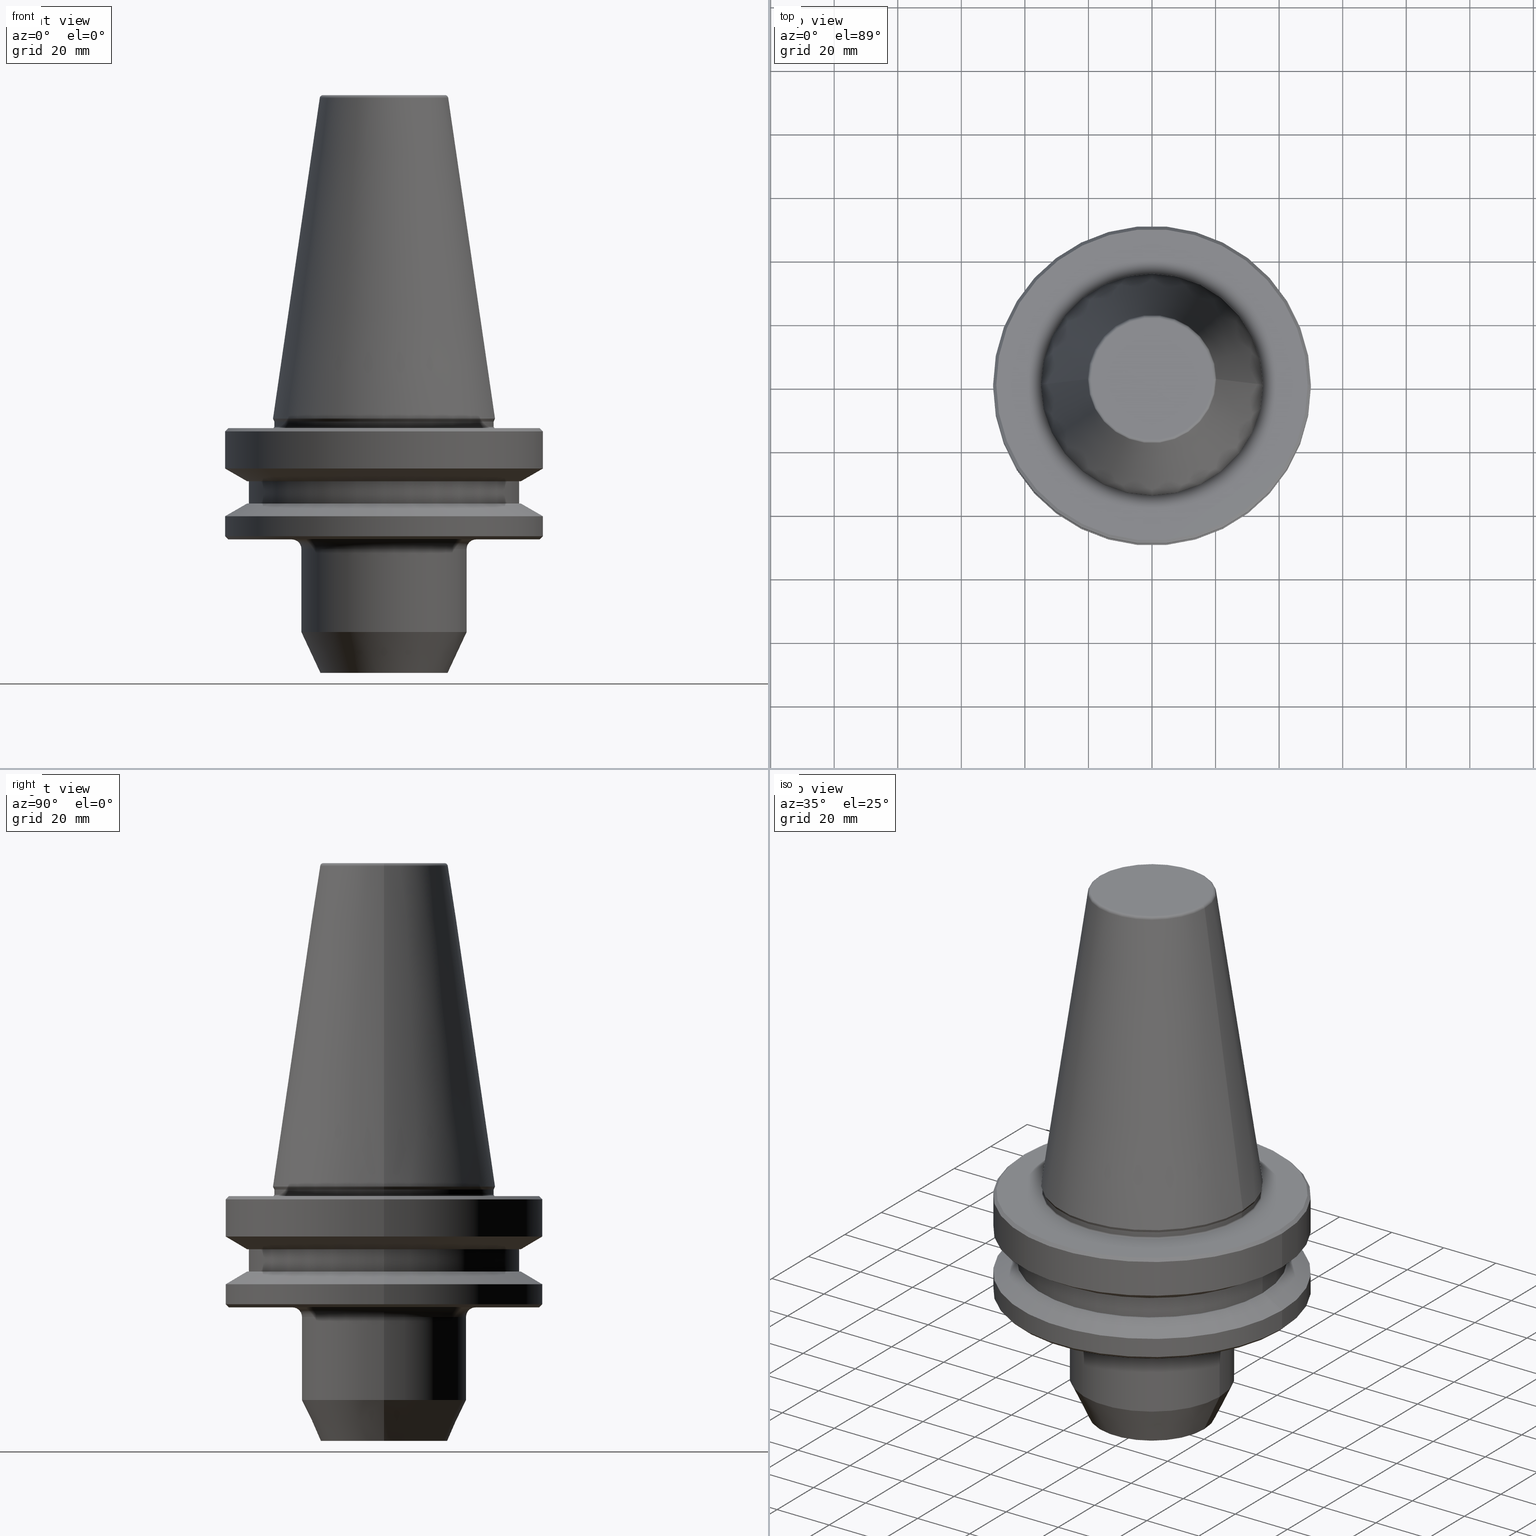
[diagram: canonical four-view strip — front | top / right | iso, engineering-drawing reading convention]
A machine part, canonical four-view strip (front | top / right | iso — engineering-drawing reading convention). The complete STEP part file that produces these views, byte-faithful:
ISO-10303-21;
HEADER;
FILE_DESCRIPTION (( 'STEP AP203' ),
    '1' );
FILE_NAME ('BT50 WE20 080 AD-6.3G15000 SL.STEP',
    '2019-05-22T11:20:30',
    ( '' ),
    ( '' ),
    'SwSTEP 2.0',
    'SolidWorks 2014',
    '' );
FILE_SCHEMA (( 'CONFIG_CONTROL_DESIGN' ));
ENDSEC;

DATA;
#1 = CONICAL_SURFACE ( 'NONE', #917, 48.99999999999970900, 0.7853981633974482800 ) ;
#2 = AXIS2_PLACEMENT_3D ( 'NONE', #921, #999, #465 ) ;
#3 = DIRECTION ( 'NONE',  ( 1.224646799147353200E-016, 1.000000000000000000, 0.0000000000000000000 ) ) ;
#4 = DIRECTION ( 'NONE',  ( 0.0000000000000000000, -0.0000000000000000000, 1.000000000000000000 ) ) ;
#5 = CARTESIAN_POINT ( 'NONE',  ( -48.99999999999970900, 6.062001655779363000E-015, -38.00000000000182600 ) ) ;
#6 = AXIS2_PLACEMENT_3D ( 'NONE', #742, #982, #770 ) ;
#7 = DIRECTION ( 'NONE',  ( 0.0000000000000000000, -0.0000000000000000000, 1.000000000000000000 ) ) ;
#8 = DIRECTION ( 'NONE',  ( -0.0000000000000000000, -0.0000000000000000000, 1.000000000000000000 ) ) ;
#9 = PLANE ( 'NONE',  #398 ) ;
#10 = LINE ( 'NONE', #456, #797 ) ;
#11 = EDGE_CURVE ( 'NONE', #852, #423, #268, .T. ) ;
#12 = DIRECTION ( 'NONE',  ( -0.7071067811865474600, 0.0000000000000000000, -0.7071067811865475700 ) ) ;
#13 = ORIENTED_EDGE ( 'NONE', *, *, #861, .T. ) ;
#14 = CARTESIAN_POINT ( 'NONE',  ( 19.21428366486932400, 0.0000000000000000000, 100.7999999999987800 ) ) ;
#15 = ORIENTED_EDGE ( 'NONE', *, *, #940, .F. ) ;
#16 = AXIS2_PLACEMENT_3D ( 'NONE', #252, #905, #219 ) ;
#17 = ORIENTED_EDGE ( 'NONE', *, *, #800, .F. ) ;
#18 = ORIENTED_EDGE ( 'NONE', *, *, #343, .F. ) ;
#19 = PERSON_AND_ORGANIZATION ( #445, #753 ) ;
#20 = DIRECTION ( 'NONE',  ( 1.000000000000000000, 0.0000000000000000000, 0.0000000000000000000 ) ) ;
#21 = FACE_OUTER_BOUND ( 'NONE', #61, .T. ) ;
#22 = EDGE_CURVE ( 'NONE', #728, #57, #639, .T. ) ;
#23 = ORIENTED_EDGE ( 'NONE', *, *, #85, .F. ) ;
#24 = VECTOR ( 'NONE', #86, 1000.000000000000100 ) ;
#25 = DIRECTION ( 'NONE',  ( 1.000000000000000000, 0.0000000000000000000, 0.0000000000000000000 ) ) ;
#26 = DIRECTION ( 'NONE',  ( -0.0000000000000000000, -0.0000000000000000000, 1.000000000000000000 ) ) ;
#27 = CARTESIAN_POINT ( 'NONE',  ( 25.99999999999769100, 0.0000000000000000000, -41.00000000000194000 ) ) ;
#28 = ADVANCED_FACE ( 'NONE', ( #463 ), #9, .F. ) ;
#29 = SECURITY_CLASSIFICATION ( '', '', #242 ) ;
#30 = AXIS2_PLACEMENT_3D ( 'NONE', #383, #684, #361 ) ;
#31 = ORIENTED_EDGE ( 'NONE', *, *, #290, .T. ) ;
#32 = CARTESIAN_POINT ( 'NONE',  ( -34.49999999999964500, 4.225031457058324700E-015, 105.9391094017344400 ) ) ;
#33 = CARTESIAN_POINT ( 'NONE',  ( 0.0000000000000000000, 0.0000000000000000000, -30.69977999677488300 ) ) ;
#34 = VECTOR ( 'NONE', #530, 1000.000000000000100 ) ;
#35 = CYLINDRICAL_SURFACE ( 'NONE', #631, 34.49999999999964500 ) ;
#36 = AXIS2_PLACEMENT_3D ( 'NONE', #33, #269, #208 ) ;
#37 = VERTEX_POINT ( 'NONE', #75 ) ;
#38 = DIRECTION ( 'NONE',  ( -1.000000000000000000, 0.0000000000000000000, 0.0000000000000000000 ) ) ;
#39 = ORIENTED_EDGE ( 'NONE', *, *, #561, .F. ) ;
#40 = ORIENTED_EDGE ( 'NONE', *, *, #960, .F. ) ;
#41 = PERSON_AND_ORGANIZATION ( #445, #753 ) ;
#42 = ADVANCED_FACE ( 'NONE', ( #851 ), #987, .T. ) ;
#43 = CARTESIAN_POINT ( 'NONE',  ( -42.49999999999931800, 5.204748896376167300E-015, -19.70000000000073100 ) ) ;
#44 = CONICAL_SURFACE ( 'NONE', #6, 34.92499999999920800, 0.1448138426689056500 ) ;
#45 = PERSON_AND_ORGANIZATION_ROLE ( 'design_owner' ) ;
#46 = DIRECTION ( 'NONE',  ( -0.0000000000000000000, -0.0000000000000000000, 1.000000000000000000 ) ) ;
#47 = VERTEX_POINT ( 'NONE', #248 ) ;
#48 = FACE_OUTER_BOUND ( 'NONE', #634, .T. ) ;
#49 = DIRECTION ( 'NONE',  ( -0.0000000000000000000, -0.0000000000000000000, 1.000000000000000000 ) ) ;
#50 = PERSON_AND_ORGANIZATION_ROLE ( 'creator' ) ;
#51 = ORIENTED_EDGE ( 'NONE', *, *, #979, .T. ) ;
#52 = EDGE_CURVE ( 'NONE', #47, #209, #595, .T. ) ;
#53 = VECTOR ( 'NONE', #264, 1000.000000000000000 ) ;
#54 = CIRCLE ( 'NONE', #955, 34.99999999999947400 ) ;
#55 = CARTESIAN_POINT ( 'NONE',  ( -34.92499999999920800, 4.277078946022033900E-015, 1.084202172485504400E-016 ) ) ;
#56 = VECTOR ( 'NONE', #759, 1000.000000000000000 ) ;
#57 = VERTEX_POINT ( 'NONE', #805 ) ;
#58 = PRODUCT_DEFINITION ( 'UNKNOWN', '', #752, #590 ) ;
#59 = ORIENTED_EDGE ( 'NONE', *, *, #166, .T. ) ;
#60 = DIRECTION ( 'NONE',  ( 0.0000000000000000000, 0.0000000000000000000, -1.000000000000000000 ) ) ;
#61 = EDGE_LOOP ( 'NONE', ( #1001, #640, #859, #897 ) ) ;
#62 = CC_DESIGN_PERSON_AND_ORGANIZATION_ASSIGNMENT ( #255, #828, ( #752 ) ) ;
#63 = EDGE_CURVE ( 'NONE', #701, #862, #782, .T. ) ;
#64 = CALENDAR_DATE ( 2019, 22, 5 ) ;
#65 = FACE_BOUND ( 'NONE', #69, .T. ) ;
#66 = AXIS2_PLACEMENT_3D ( 'NONE', #160, #204, #819 ) ;
#67 = ORIENTED_EDGE ( 'NONE', *, *, #330, .T. ) ;
#68 = EDGE_CURVE ( 'NONE', #183, #81, #399, .T. ) ;
#69 = EDGE_LOOP ( 'NONE', ( #328, #973 ) ) ;
#70 = ORIENTED_EDGE ( 'NONE', *, *, #762, .T. ) ;
#71 = VECTOR ( 'NONE', #766, 1000.000000000000000 ) ;
#72 = EDGE_CURVE ( 'NONE', #532, #501, #575, .T. ) ;
#73 = FACE_OUTER_BOUND ( 'NONE', #200, .T. ) ;
#74 = AXIS2_PLACEMENT_3D ( 'NONE', #585, #4, #798 ) ;
#75 = CARTESIAN_POINT ( 'NONE',  ( -49.99999999999970900, 0.0000000000000000000, -4.000000000001335800 ) ) ;
#76 = AXIS2_PLACEMENT_3D ( 'NONE', #353, #953, #450 ) ;
#77 = DIRECTION ( 'NONE',  ( 1.000000000000000000, 0.0000000000000000000, 0.0000000000000000000 ) ) ;
#78 = DIRECTION ( 'NONE',  ( 1.000000000000000000, 0.0000000000000000000, 0.0000000000000000000 ) ) ;
#79 = EDGE_CURVE ( 'NONE', #368, #852, #372, .T. ) ;
#80 = DIRECTION ( 'NONE',  ( 0.0000000000000000000, 0.0000000000000000000, -1.000000000000000000 ) ) ;
#81 = VERTEX_POINT ( 'NONE', #91 ) ;
#82 = AXIS2_PLACEMENT_3D ( 'NONE', #723, #515, #156 ) ;
#83 = FACE_OUTER_BOUND ( 'NONE', #230, .T. ) ;
#84 = VECTOR ( 'NONE', #538, 1000.000000000000100 ) ;
#85 = EDGE_CURVE ( 'NONE', #423, #772, #201, .T. ) ;
#86 = DIRECTION ( 'NONE',  ( 0.4226182617406886200, 0.0000000000000000000, 0.9063077870366550400 ) ) ;
#87 = AXIS2_PLACEMENT_3D ( 'NONE', #374, #776, #873 ) ;
#88 = DIRECTION ( 'NONE',  ( 1.000000000000000000, 0.0000000000000000000, 0.0000000000000000000 ) ) ;
#89 = EDGE_LOOP ( 'NONE', ( #628, #234, #885, #918 ) ) ;
#90 = EDGE_CURVE ( 'NONE', #324, #865, #172, .T. ) ;
#91 = CARTESIAN_POINT ( 'NONE',  ( 34.92499999999920800, 0.0000000000000000000, 1.084202172485504400E-016 ) ) ;
#92 = CARTESIAN_POINT ( 'NONE',  ( 19.21428366486932400, 0.0000000000000000000, 101.7999999999988200 ) ) ;
#93 = EDGE_CURVE ( 'NONE', #881, #380, #965, .T. ) ;
#94 = VERTEX_POINT ( 'NONE', #5 ) ;
#95 = DIRECTION ( 'NONE',  ( -0.0000000000000000000, -0.0000000000000000000, 1.000000000000000000 ) ) ;
#96 = PLANE ( 'NONE',  #961 ) ;
#97 = EDGE_CURVE ( 'NONE', #152, #422, #758, .T. ) ;
#98 = DATE_AND_TIME ( #295, #492 ) ;
#99 = FACE_OUTER_BOUND ( 'NONE', #340, .T. ) ;
#100 = CC_DESIGN_APPROVAL ( #192, ( #58 ) ) ;
#101 = ORIENTED_EDGE ( 'NONE', *, *, #966, .F. ) ;
#102 = CIRCLE ( 'NONE', #627, 49.99999999999970900 ) ;
#103 = LINE ( 'NONE', #553, #611 ) ;
#104 = ORIENTED_EDGE ( 'NONE', *, *, #319, .F. ) ;
#105 = ADVANCED_FACE ( 'NONE', ( #944 ), #919, .T. ) ;
#106 = ORIENTED_EDGE ( 'NONE', *, *, #626, .T. ) ;
#107 = CARTESIAN_POINT ( 'NONE',  ( 49.99999999999970900, 0.0000000000000000000, 105.9391094017344400 ) ) ;
#108 = FACE_OUTER_BOUND ( 'NONE', #843, .T. ) ;
#109 = CARTESIAN_POINT ( 'NONE',  ( 0.0000000000000000000, 0.0000000000000000000, -4.000000000001335800 ) ) ;
#110 = ORIENTED_EDGE ( 'NONE', *, *, #720, .T. ) ;
#111 = ORIENTED_EDGE ( 'NONE', *, *, #446, .T. ) ;
#112 = DIRECTION ( 'NONE',  ( 1.000000000000000000, 0.0000000000000000000, 0.0000000000000000000 ) ) ;
#113 = EDGE_CURVE ( 'NONE', #603, #943, #329, .T. ) ;
#114 = DIRECTION ( 'NONE',  ( 0.7071067811865474600, 0.0000000000000000000, 0.7071067811865475700 ) ) ;
#115 = APPROVAL_DATE_TIME ( #322, #192 ) ;
#116 = CARTESIAN_POINT ( 'NONE',  ( 0.0000000000000000000, 0.0000000000000000000, -30.69977999677488300 ) ) ;
#117 = CARTESIAN_POINT ( 'NONE',  ( -34.49999999999953100, 4.225031457058311300E-015, -0.9114154412158681500 ) ) ;
#118 = EDGE_LOOP ( 'NONE', ( #556, #294, #948, #910 ) ) ;
#119 = ADVANCED_FACE ( 'NONE', ( #551 ), #521, .F. ) ;
#120 = FACE_OUTER_BOUND ( 'NONE', #560, .T. ) ;
#121 = DIRECTION ( 'NONE',  ( -0.0000000000000000000, -0.0000000000000000000, 1.000000000000000000 ) ) ;
#122 = FACE_OUTER_BOUND ( 'NONE', #882, .T. ) ;
#123 = CARTESIAN_POINT ( 'NONE',  ( 0.0000000000000000000, 0.0000000000000000000, -30.69977999677488300 ) ) ;
#124 = APPLICATION_CONTEXT ( 'configuration controlled 3d designs of mechanical parts and assemblies' ) ;
#125 = ADVANCED_FACE ( 'NONE', ( #703 ), #301, .T. ) ;
#126 = ORIENTED_EDGE ( 'NONE', *, *, #63, .F. ) ;
#127 = DIRECTION ( 'NONE',  ( 0.0000000000000000000, 0.0000000000000000000, -1.000000000000000000 ) ) ;
#128 = EDGE_CURVE ( 'NONE', #702, #258, #498, .T. ) ;
#129 = AXIS2_PLACEMENT_3D ( 'NONE', #903, #596, #577 ) ;
#130 = AXIS2_PLACEMENT_3D ( 'NONE', #930, #539, #847 ) ;
#131 = VECTOR ( 'NONE', #366, 1000.000000000000000 ) ;
#132 = EDGE_LOOP ( 'NONE', ( #406, #721 ) ) ;
#133 = DIRECTION ( 'NONE',  ( 1.000000000000000000, 0.0000000000000000000, 0.0000000000000000000 ) ) ;
#134 = ORIENTED_EDGE ( 'NONE', *, *, #440, .F. ) ;
#135 = AXIS2_PLACEMENT_3D ( 'NONE', #705, #860, #916 ) ;
#136 = EDGE_CURVE ( 'NONE', #422, #152, #729, .T. ) ;
#137 = EDGE_CURVE ( 'NONE', #501, #532, #102, .T. ) ;
#138 = CARTESIAN_POINT ( 'NONE',  ( 0.0000000000000000000, 0.0000000000000000000, -3.000000000001334900 ) ) ;
#139 = CARTESIAN_POINT ( 'NONE',  ( 0.0000000000000000000, 0.0000000000000000000, -0.9114154412158681500 ) ) ;
#140 = ORIENTED_EDGE ( 'NONE', *, *, #981, .T. ) ;
#141 = ORIENTED_EDGE ( 'NONE', *, *, #227, .F. ) ;
#142 = CARTESIAN_POINT ( 'NONE',  ( -49.99999999999970900, 6.123233995736729800E-015, -37.00000000000182600 ) ) ;
#143 = APPROVAL_PERSON_ORGANIZATION ( #347, #192, #381 ) ;
#144 = VERTEX_POINT ( 'NONE', #43 ) ;
#145 = VECTOR ( 'NONE', #375, 1000.000000000000000 ) ;
#146 = LINE ( 'NONE', #478, #351 ) ;
#147 = EDGE_CURVE ( 'NONE', #862, #701, #681, .T. ) ;
#148 = DIRECTION ( 'NONE',  ( -0.8660254037844377100, 1.060575238724905700E-016, 0.5000000000000017800 ) ) ;
#149 = CARTESIAN_POINT ( 'NONE',  ( 0.0000000000000000000, 0.0000000000000000000, 105.9391094017344400 ) ) ;
#150 = ORIENTED_EDGE ( 'NONE', *, *, #671, .T. ) ;
#151 = DIRECTION ( 'NONE',  ( -0.0000000000000000000, -0.0000000000000000000, 1.000000000000000000 ) ) ;
#152 = VERTEX_POINT ( 'NONE', #692 ) ;
#153 = CARTESIAN_POINT ( 'NONE',  ( 0.0000000000000000000, 0.0000000000000000000, 100.9443082234283100 ) ) ;
#154 = CARTESIAN_POINT ( 'NONE',  ( 0.0000000000000000000, 0.0000000000000000000, -30.69977999677488300 ) ) ;
#155 = VECTOR ( 'NONE', #700, 1000.000000000000000 ) ;
#156 = DIRECTION ( 'NONE',  ( 1.000000000000000000, 0.0000000000000000000, 0.0000000000000000000 ) ) ;
#157 = CARTESIAN_POINT ( 'NONE',  ( 0.0000000000000000000, 0.0000000000000000000, 101.7999999999988200 ) ) ;
#158 = VERTEX_POINT ( 'NONE', #763 ) ;
#159 = CIRCLE ( 'NONE', #698, 3.000000000000058200 ) ;
#160 = CARTESIAN_POINT ( 'NONE',  ( 0.0000000000000000000, 0.0000000000000000000, -38.00000000000182600 ) ) ;
#161 = DIRECTION ( 'NONE',  ( 1.000000000000000000, 0.0000000000000000000, 0.0000000000000000000 ) ) ;
#162 = AXIS2_PLACEMENT_3D ( 'NONE', #348, #246, #649 ) ;
#163 = ORIENTED_EDGE ( 'NONE', *, *, #401, .F. ) ;
#164 = EDGE_LOOP ( 'NONE', ( #491, #554, #512, #510 ) ) ;
#165 = CARTESIAN_POINT ( 'NONE',  ( 0.0000000000000000000, 0.0000000000000000000, -38.00000000000188300 ) ) ;
#166 = EDGE_CURVE ( 'NONE', #929, #183, #898, .T. ) ;
#167 = DIRECTION ( 'NONE',  ( -0.0000000000000000000, -0.0000000000000000000, 1.000000000000000000 ) ) ;
#168 = TOROIDAL_SURFACE ( 'NONE', #746, 34.99999999999947400, 0.4999999999997228900 ) ;
#169 = VERTEX_POINT ( 'NONE', #170 ) ;
#170 = CARTESIAN_POINT ( 'NONE',  ( -19.21428366486932400, 2.413662506824872900E-015, 101.7999999999988200 ) ) ;
#171 = ORIENTED_EDGE ( 'NONE', *, *, #587, .F. ) ;
#172 = CIRCLE ( 'NONE', #87, 42.49999999999931800 ) ;
#173 = AXIS2_PLACEMENT_3D ( 'NONE', #992, #26, #785 ) ;
#174 = DIRECTION ( 'NONE',  ( -0.0000000000000000000, -0.0000000000000000000, 1.000000000000000000 ) ) ;
#175 = ORIENTED_EDGE ( 'NONE', *, *, #303, .T. ) ;
#176 = EDGE_CURVE ( 'NONE', #881, #196, #282, .T. ) ;
#177 = EDGE_CURVE ( 'NONE', #603, #169, #870, .T. ) ;
#178 = CC_DESIGN_PERSON_AND_ORGANIZATION_ASSIGNMENT ( #915, #696, ( #58 ) ) ;
#179 = DIRECTION ( 'NONE',  ( 1.000000000000000000, 0.0000000000000000000, 0.0000000000000000000 ) ) ;
#180 = ORIENTED_EDGE ( 'NONE', *, *, #635, .F. ) ;
#181 = EDGE_CURVE ( 'NONE', #94, #925, #472, .T. ) ;
#182 = CARTESIAN_POINT ( 'NONE',  ( 43.07217782648920200, 5.699027233244145800E-015, -26.70000000000073800 ) ) ;
#183 = VERTEX_POINT ( 'NONE', #55 ) ;
#184 = VECTOR ( 'NONE', #12, 1000.000000000000000 ) ;
#185 = EDGE_CURVE ( 'NONE', #814, #169, #657, .T. ) ;
#186 = DIRECTION ( 'NONE',  ( -0.0000000000000000000, -0.0000000000000000000, 1.000000000000000000 ) ) ;
#187 = ORIENTED_EDGE ( 'NONE', *, *, #765, .F. ) ;
#188 = ADVANCED_FACE ( 'NONE', ( #120 ), #629, .T. ) ;
#189 = VERTEX_POINT ( 'NONE', #518 ) ;
#190 = CIRCLE ( 'NONE', #667, 34.49999999999953100 ) ;
#191 = CARTESIAN_POINT ( 'NONE',  ( 0.0000000000000000000, 0.0000000000000000000, 105.9391094017344400 ) ) ;
#192 = APPROVAL ( #321, 'UNSPECIFIED' ) ;
#193 = ADVANCED_FACE ( 'NONE', ( #433 ), #815, .T. ) ;
#194 = AXIS2_PLACEMENT_3D ( 'NONE', #153, #418, #297 ) ;
#195 = ORIENTED_EDGE ( 'NONE', *, *, #93, .T. ) ;
#196 = VERTEX_POINT ( 'NONE', #421 ) ;
#197 = DIRECTION ( 'NONE',  ( -0.0000000000000000000, -0.0000000000000000000, 1.000000000000000000 ) ) ;
#198 = FACE_OUTER_BOUND ( 'NONE', #459, .T. ) ;
#199 = AXIS2_PLACEMENT_3D ( 'NONE', #707, #226, #968 ) ;
#200 = EDGE_LOOP ( 'NONE', ( #599, #291 ) ) ;
#201 = CIRCLE ( 'NONE', #911, 25.99999999999769100 ) ;
#202 = CARTESIAN_POINT ( 'NONE',  ( 0.0000000000000000000, 0.0000000000000000000, -38.00000000000182600 ) ) ;
#203 = DIRECTION ( 'NONE',  ( -0.0000000000000000000, -0.0000000000000000000, 1.000000000000000000 ) ) ;
#204 = DIRECTION ( 'NONE',  ( -0.0000000000000000000, -0.0000000000000000000, 1.000000000000000000 ) ) ;
#205 = ADVANCED_FACE ( 'NONE', ( #48 ), #839, .T. ) ;
#206 = DIRECTION ( 'NONE',  ( -0.0000000000000000000, -0.0000000000000000000, 1.000000000000000000 ) ) ;
#207 = AXIS2_PLACEMENT_3D ( 'NONE', #710, #397, #363 ) ;
#208 = DIRECTION ( 'NONE',  ( 1.000000000000000000, 0.0000000000000000000, 0.0000000000000000000 ) ) ;
#209 = VERTEX_POINT ( 'NONE', #182 ) ;
#210 = DIRECTION ( 'NONE',  ( 1.000000000000000000, 0.0000000000000000000, 0.0000000000000000000 ) ) ;
#211 = CALENDAR_DATE ( 2019, 22, 5 ) ;
#212 = ADVANCED_FACE ( 'NONE', ( #604 ), #1, .T. ) ;
#213 = FACE_BOUND ( 'NONE', #132, .T. ) ;
#214 = ORIENTED_EDGE ( 'NONE', *, *, #762, .F. ) ;
#215 = LINE ( 'NONE', #545, #24 ) ;
#216 = CARTESIAN_POINT ( 'NONE',  ( 0.0000000000000000000, 0.0000000000000000000, 105.9391094017344400 ) ) ;
#217 = CARTESIAN_POINT ( 'NONE',  ( 0.0000000000000000000, 0.0000000000000000000, -2.500000000001834100 ) ) ;
#218 = DATE_TIME_ROLE ( 'creation_date' ) ;
#219 = DIRECTION ( 'NONE',  ( 1.000000000000000000, 0.0000000000000000000, 0.0000000000000000000 ) ) ;
#220 = CARTESIAN_POINT ( 'NONE',  ( 0.0000000000000000000, 0.0000000000000000000, -2.500000000001834100 ) ) ;
#221 = CARTESIAN_POINT ( 'NONE',  ( 42.49999999999931800, 0.0000000000000000000, -26.70000000000073800 ) ) ;
#222 = AXIS2_PLACEMENT_3D ( 'NONE', #139, #203, #871 ) ;
#223 = DIRECTION ( 'NONE',  ( -0.0000000000000000000, -0.0000000000000000000, 1.000000000000000000 ) ) ;
#224 = CIRCLE ( 'NONE', #173, 19.99999999999790700 ) ;
#225 = EDGE_LOOP ( 'NONE', ( #893, #262, #150, #110 ) ) ;
#226 = DIRECTION ( 'NONE',  ( -0.0000000000000000000, -0.0000000000000000000, 1.000000000000000000 ) ) ;
#227 = EDGE_CURVE ( 'NONE', #349, #852, #215, .T. ) ;
#228 = EDGE_LOOP ( 'NONE', ( #471, #789, #111, #371 ) ) ;
#229 = DIRECTION ( 'NONE',  ( 1.000000000000000000, 0.0000000000000000000, 0.0000000000000000000 ) ) ;
#230 = EDGE_LOOP ( 'NONE', ( #568, #356, #313, #778 ) ) ;
#231 = APPROVAL_ROLE ( '' ) ;
#232 = AXIS2_PLACEMENT_3D ( 'NONE', #668, #239, #836 ) ;
#233 = DIRECTION ( 'NONE',  ( -0.0000000000000000000, -0.0000000000000000000, 1.000000000000000000 ) ) ;
#234 = ORIENTED_EDGE ( 'NONE', *, *, #868, .T. ) ;
#235 = DATE_AND_TIME ( #428, #623 ) ;
#236 = AXIS2_PLACEMENT_3D ( 'NONE', #216, #769, #391 ) ;
#237 = CARTESIAN_POINT ( 'NONE',  ( 0.0000000000000000000, 19.99999999999790700, -80.00000000000140700 ) ) ;
#238 = LINE ( 'NONE', #32, #601 ) ;
#239 = DIRECTION ( 'NONE',  ( 0.0000000000000000000, -1.000000000000000000, 0.0000000000000000000 ) ) ;
#240 = VERTEX_POINT ( 'NONE', #505 ) ;
#241 = FACE_OUTER_BOUND ( 'NONE', #732, .T. ) ;
#242 = SECURITY_CLASSIFICATION_LEVEL ( 'unclassified' ) ;
#243 = EDGE_CURVE ( 'NONE', #169, #814, #454, .T. ) ;
#244 = CARTESIAN_POINT ( 'NONE',  ( 0.0000000000000000000, 0.0000000000000000000, -38.00000000000182600 ) ) ;
#245 = DIRECTION ( 'NONE',  ( 1.000000000000000000, 0.0000000000000000000, 0.0000000000000000000 ) ) ;
#246 = DIRECTION ( 'NONE',  ( -0.0000000000000000000, -0.0000000000000000000, 1.000000000000000000 ) ) ;
#247 = CARTESIAN_POINT ( 'NONE',  ( -34.99999999999947400, 4.286263797015671800E-015, -2.500000000001834100 ) ) ;
#248 = CARTESIAN_POINT ( 'NONE',  ( -43.07217782648920200, 0.0000000000000000000, -26.70000000000073800 ) ) ;
#249 = APPROVAL_STATUS ( 'not_yet_approved' ) ;
#250 = FACE_OUTER_BOUND ( 'NONE', #364, .T. ) ;
#251 = CIRCLE ( 'NONE', #325, 49.99999999999970900 ) ;
#252 = CARTESIAN_POINT ( 'NONE',  ( 0.0000000000000000000, 0.0000000000000000000, 100.9443082234283100 ) ) ;
#253 = ORIENTED_EDGE ( 'NONE', *, *, #536, .T. ) ;
#254 = ORIENTED_EDGE ( 'NONE', *, *, #966, .T. ) ;
#255 = PERSON_AND_ORGANIZATION ( #445, #753 ) ;
#256 = LINE ( 'NONE', #824, #652 ) ;
#257 = DIRECTION ( 'NONE',  ( 1.000000000000000000, 0.0000000000000000000, 0.0000000000000000000 ) ) ;
#258 = VERTEX_POINT ( 'NONE', #617 ) ;
#259 = LINE ( 'NONE', #323, #365 ) ;
#260 = DIRECTION ( 'NONE',  ( 1.000000000000000000, 0.0000000000000000000, 0.0000000000000000000 ) ) ;
#261 = MECHANICAL_CONTEXT ( 'NONE', #124, 'mechanical' ) ;
#262 = ORIENTED_EDGE ( 'NONE', *, *, #441, .F. ) ;
#263 = ADVANCED_FACE ( 'NONE', ( #241 ), #385, .T. ) ;
#264 = DIRECTION ( 'NONE',  ( 0.4226182617406989400, 0.0000000000000000000, 0.9063077870366501600 ) ) ;
#265 = CIRCLE ( 'NONE', #36, 49.99999999999970900 ) ;
#266 = LINE ( 'NONE', #726, #688 ) ;
#267 = CARTESIAN_POINT ( 'NONE',  ( 19.99999999999790700, 0.0000000000000000000, -80.00000000000142100 ) ) ;
#268 = LINE ( 'NONE', #834, #56 ) ;
#269 = DIRECTION ( 'NONE',  ( -0.0000000000000000000, -0.0000000000000000000, 1.000000000000000000 ) ) ;
#270 = CARTESIAN_POINT ( 'NONE',  ( 0.0000000000000000000, 0.0000000000000000000, -80.00000000000142100 ) ) ;
#271 = EDGE_LOOP ( 'NONE', ( #951, #786, #488, #15 ) ) ;
#272 = DIRECTION ( 'NONE',  ( 1.000000000000000000, 0.0000000000000000000, 0.0000000000000000000 ) ) ;
#273 = AXIS2_PLACEMENT_3D ( 'NONE', #344, #528, #990 ) ;
#274 = LOCAL_TIME ( 16, 50, 30.00000000000000000, #468 ) ;
#275 = CARTESIAN_POINT ( 'NONE',  ( 34.49999999999964500, 0.0000000000000000000, 105.9391094017344400 ) ) ;
#276 = CONICAL_SURFACE ( 'NONE', #845, 34.92499999999920800, 0.1448138426689056500 ) ;
#277 = CARTESIAN_POINT ( 'NONE',  ( 48.99999999999970900, 6.062001655779363000E-015, -3.000000000001334900 ) ) ;
#278 = DIRECTION ( 'NONE',  ( -0.0000000000000000000, -0.0000000000000000000, 1.000000000000000000 ) ) ;
#279 = AXIS2_PLACEMENT_3D ( 'NONE', #373, #8, #534 ) ;
#280 = ORIENTED_EDGE ( 'NONE', *, *, #176, .F. ) ;
#281 = ADVANCED_FACE ( 'NONE', ( #411 ), #976, .T. ) ;
#282 = CIRCLE ( 'NONE', #775, 34.49999999999975100 ) ;
#283 = DIRECTION ( 'NONE',  ( -1.000000000000000000, 0.0000000000000000000, -0.0000000000000000000 ) ) ;
#284 = FACE_OUTER_BOUND ( 'NONE', #519, .T. ) ;
#285 = DIRECTION ( 'NONE',  ( -0.0000000000000000000, -0.0000000000000000000, 1.000000000000000000 ) ) ;
#286 = LINE ( 'NONE', #107, #460 ) ;
#287 = CONICAL_SURFACE ( 'NONE', #222, 34.49999999999953100, 0.4363323129985819400 ) ;
#288 = ORIENTED_EDGE ( 'NONE', *, *, #440, .T. ) ;
#289 = VERTEX_POINT ( 'NONE', #481 ) ;
#290 = EDGE_CURVE ( 'NONE', #852, #368, #584, .T. ) ;
#291 = ORIENTED_EDGE ( 'NONE', *, *, #181, .F. ) ;
#292 = DIRECTION ( 'NONE',  ( -0.0000000000000000000, -0.0000000000000000000, 1.000000000000000000 ) ) ;
#293 = ORIENTED_EDGE ( 'NONE', *, *, #137, .F. ) ;
#294 = ORIENTED_EDGE ( 'NONE', *, *, #822, .T. ) ;
#295 = CALENDAR_DATE ( 2019, 22, 5 ) ;
#296 = AXIS2_PLACEMENT_3D ( 'NONE', #416, #895, #591 ) ;
#297 = DIRECTION ( 'NONE',  ( 1.000000000000000000, 0.0000000000000000000, 0.0000000000000000000 ) ) ;
#298 = FACE_OUTER_BOUND ( 'NONE', #869, .T. ) ;
#299 = CARTESIAN_POINT ( 'NONE',  ( 0.0000000000000000000, 19.21428366486932400, 101.7999999999988000 ) ) ;
#300 = ORIENTED_EDGE ( 'NONE', *, *, #902, .T. ) ;
#301 = CYLINDRICAL_SURFACE ( 'NONE', #909, 49.99999999999970900 ) ;
#302 = TOROIDAL_SURFACE ( 'NONE', #130, 28.99999999999769400, 3.000000000000058200 ) ;
#303 = EDGE_CURVE ( 'NONE', #380, #929, #190, .T. ) ;
#304 = CARTESIAN_POINT ( 'NONE',  ( 0.0000000000000000000, 0.0000000000000000000, -26.70000000000073800 ) ) ;
#305 = DIRECTION ( 'NONE',  ( 1.000000000000000000, 0.0000000000000000000, 0.0000000000000000000 ) ) ;
#306 = ORIENTED_EDGE ( 'NONE', *, *, #400, .F. ) ;
#307 = CARTESIAN_POINT ( 'NONE',  ( 48.99999999999970900, 0.0000000000000000000, -38.00000000000182600 ) ) ;
#308 = CARTESIAN_POINT ( 'NONE',  ( -34.99999999999947400, 4.286263797015671800E-015, -3.000000000001446000 ) ) ;
#309 = CYLINDRICAL_SURFACE ( 'NONE', #236, 49.99999999999970900 ) ;
#310 = AXIS2_PLACEMENT_3D ( 'NONE', #154, #487, #390 ) ;
#311 = EDGE_CURVE ( 'NONE', #258, #37, #793, .T. ) ;
#312 = DIRECTION ( 'NONE',  ( 1.224646799147353200E-016, 1.000000000000000000, 0.0000000000000000000 ) ) ;
#313 = ORIENTED_EDGE ( 'NONE', *, *, #686, .T. ) ;
#314 =( LENGTH_UNIT ( ) NAMED_UNIT ( * ) SI_UNIT ( .MILLI., .METRE. ) );
#315 = CARTESIAN_POINT ( 'NONE',  ( 34.49999999999953100, 0.0000000000000000000, -0.9114154412158681500 ) ) ;
#316 = EDGE_CURVE ( 'NONE', #47, #57, #259, .T. ) ;
#317 = DIRECTION ( 'NONE',  ( -0.0000000000000000000, -0.0000000000000000000, 1.000000000000000000 ) ) ;
#318 = AXIS2_PLACEMENT_3D ( 'NONE', #138, #613, #609 ) ;
#319 = EDGE_CURVE ( 'NONE', #925, #532, #768, .T. ) ;
#320 = ORIENTED_EDGE ( 'NONE', *, *, #311, .T. ) ;
#321 = APPROVAL_STATUS ( 'not_yet_approved' ) ;
#322 = DATE_AND_TIME ( #514, #725 ) ;
#323 = CARTESIAN_POINT ( 'NONE',  ( -49.99999999999970900, 0.0000000000000000000, -30.69977999677488300 ) ) ;
#324 = VERTEX_POINT ( 'NONE', #690 ) ;
#325 = AXIS2_PLACEMENT_3D ( 'NONE', #520, #899, #659 ) ;
#326 = DIRECTION ( 'NONE',  ( 1.000000000000000000, 0.0000000000000000000, 0.0000000000000000000 ) ) ;
#327 = PERSON_AND_ORGANIZATION_ROLE ( 'classification_officer' ) ;
#328 = ORIENTED_EDGE ( 'NONE', *, *, #63, .T. ) ;
#329 = CIRCLE ( 'NONE', #194, 20.20381645192126300 ) ;
#330 = EDGE_CURVE ( 'NONE', #862, #772, #159, .T. ) ;
#331 = DIRECTION ( 'NONE',  ( -1.000000000000000000, 0.0000000000000000000, -0.0000000000000000000 ) ) ;
#332 = CONICAL_SURFACE ( 'NONE', #66, 48.99999999999970900, 0.7853981633974482800 ) ;
#333 = DIRECTION ( 'NONE',  ( 1.224646799147353200E-016, 1.000000000000000000, 0.0000000000000000000 ) ) ;
#334 = VERTEX_POINT ( 'NONE', #308 ) ;
#335 = DIRECTION ( 'NONE',  ( 0.8660254037844377100, 0.0000000000000000000, 0.5000000000000017800 ) ) ;
#336 = EDGE_CURVE ( 'NONE', #549, #189, #745, .T. ) ;
#337 = ORIENTED_EDGE ( 'NONE', *, *, #11, .F. ) ;
#338 = FACE_OUTER_BOUND ( 'NONE', #991, .T. ) ;
#339 = DIRECTION ( 'NONE',  ( -0.0000000000000000000, -0.0000000000000000000, 1.000000000000000000 ) ) ;
#340 = EDGE_LOOP ( 'NONE', ( #774, #578, #744, #783 ) ) ;
#341 = ADVANCED_FACE ( 'NONE', ( #562 ), #332, .T. ) ;
#342 = VERTEX_POINT ( 'NONE', #665 ) ;
#343 = EDGE_CURVE ( 'NONE', #368, #772, #524, .T. ) ;
#344 = CARTESIAN_POINT ( 'NONE',  ( 0.0000000000000000000, 0.0000000000000000000, -0.9114154412158681500 ) ) ;
#345 = DIRECTION ( 'NONE',  ( 1.000000000000000000, 0.0000000000000000000, 0.0000000000000000000 ) ) ;
#346 = ORIENTED_EDGE ( 'NONE', *, *, #72, .F. ) ;
#347 = PERSON_AND_ORGANIZATION ( #445, #753 ) ;
#348 = CARTESIAN_POINT ( 'NONE',  ( 0.0000000000000000000, 0.0000000000000000000, -67.13295847694412500 ) ) ;
#349 = VERTEX_POINT ( 'NONE', #267 ) ;
#350 = VECTOR ( 'NONE', #985, 1000.000000000000000 ) ;
#351 = VECTOR ( 'NONE', #993, 1000.000000000000000 ) ;
#352 = CARTESIAN_POINT ( 'NONE',  ( 49.99999999999970900, 0.0000000000000000000, -37.00000000000182600 ) ) ;
#353 = CARTESIAN_POINT ( 'NONE',  ( 0.0000000000000000000, 0.0000000000000000000, -4.000000000001335800 ) ) ;
#354 = ADVANCED_FACE ( 'NONE', ( #533 ), #500, .T. ) ;
#355 = CARTESIAN_POINT ( 'NONE',  ( -43.07217782649153300, 5.274820470751845900E-015, -19.70000000000073100 ) ) ;
#356 = ORIENTED_EDGE ( 'NONE', *, *, #90, .T. ) ;
#357 = AXIS2_PLACEMENT_3D ( 'NONE', #109, #60, #957 ) ;
#358 = DIRECTION ( 'NONE',  ( -1.000000000000000000, 0.0000000000000000000, -0.0000000000000000000 ) ) ;
#359 = CARTESIAN_POINT ( 'NONE',  ( 49.99999999999970900, 0.0000000000000000000, -30.69977999677488300 ) ) ;
#360 = DIRECTION ( 'NONE',  ( -0.8660254037844390400, 0.0000000000000000000, -0.4999999999999993300 ) ) ;
#361 = DIRECTION ( 'NONE',  ( 1.000000000000000000, 0.0000000000000000000, 0.0000000000000000000 ) ) ;
#362 = LINE ( 'NONE', #784, #131 ) ;
#363 = DIRECTION ( 'NONE',  ( 1.000000000000000000, 0.0000000000000000000, 0.0000000000000000000 ) ) ;
#364 = EDGE_LOOP ( 'NONE', ( #384, #419 ) ) ;
#365 = VECTOR ( 'NONE', #360, 1000.000000000000000 ) ;
#366 = DIRECTION ( 'NONE',  ( -0.0000000000000000000, -0.0000000000000000000, 1.000000000000000000 ) ) ;
#367 = DIRECTION ( 'NONE',  ( 1.000000000000000000, 0.0000000000000000000, 0.0000000000000000000 ) ) ;
#368 = VERTEX_POINT ( 'NONE', #878 ) ;
#369 = PRODUCT ( 'BT50 WE20 080 AD-6.3G15000 SL', 'BT50 WE20 080 AD-6.3G15000 SL', '', ( #261 ) ) ;
#370 = CYLINDRICAL_SURFACE ( 'NONE', #207, 34.49999999999964500 ) ;
#371 = ORIENTED_EDGE ( 'NONE', *, *, #822, .F. ) ;
#372 = CIRCLE ( 'NONE', #884, 25.99999999999769100 ) ;
#373 = CARTESIAN_POINT ( 'NONE',  ( 0.0000000000000000000, 0.0000000000000000000, 105.9391094017344400 ) ) ;
#374 = CARTESIAN_POINT ( 'NONE',  ( 0.0000000000000000000, 0.0000000000000000000, -26.70000000000073800 ) ) ;
#375 = DIRECTION ( 'NONE',  ( 0.7071067811865474600, 8.659560562354931600E-017, -0.7071067811865475700 ) ) ;
#376 = DIRECTION ( 'NONE',  ( -0.4226182617406886200, 5.175581015019525700E-017, 0.9063077870366550400 ) ) ;
#377 = ORIENTED_EDGE ( 'NONE', *, *, #541, .T. ) ;
#378 = CARTESIAN_POINT ( 'NONE',  ( 0.0000000000000000000, 0.0000000000000000000, 0.0000000000000000000 ) ) ;
#379 = CARTESIAN_POINT ( 'NONE',  ( -28.99999999999769400, 3.551475717527042000E-015, -38.00000000000187600 ) ) ;
#380 = VERTEX_POINT ( 'NONE', #315 ) ;
#381 = APPROVAL_ROLE ( '' ) ;
#382 = FACE_OUTER_BOUND ( 'NONE', #906, .T. ) ;
#383 = CARTESIAN_POINT ( 'NONE',  ( 0.0000000000000000000, 0.0000000000000000000, -41.00000000000194000 ) ) ;
#384 = ORIENTED_EDGE ( 'NONE', *, *, #441, .T. ) ;
#385 = CYLINDRICAL_SURFACE ( 'NONE', #823, 49.99999999999970900 ) ;
#386 = CARTESIAN_POINT ( 'NONE',  ( 0.0000000000000000000, 0.0000000000000000000, -0.9114154412158681500 ) ) ;
#387 = CC_DESIGN_PERSON_AND_ORGANIZATION_ASSIGNMENT ( #544, #45, ( #369 ) ) ;
#388 = EDGE_LOOP ( 'NONE', ( #829, #792, #475, #443 ) ) ;
#389 = DIRECTION ( 'NONE',  ( 0.0000000000000000000, 0.0000000000000000000, -1.000000000000000000 ) ) ;
#390 = DIRECTION ( 'NONE',  ( -1.000000000000000000, 0.0000000000000000000, 0.0000000000000000000 ) ) ;
#391 = DIRECTION ( 'NONE',  ( 1.000000000000000000, 0.0000000000000000000, 0.0000000000000000000 ) ) ;
#392 = DIRECTION ( 'NONE',  ( -0.0000000000000000000, -0.0000000000000000000, 1.000000000000000000 ) ) ;
#393 = DIRECTION ( 'NONE',  ( 1.000000000000000000, 0.0000000000000000000, 0.0000000000000000000 ) ) ;
#394 = CARTESIAN_POINT ( 'NONE',  ( 0.0000000000000000000, 0.0000000000000000000, -19.70000000000073100 ) ) ;
#395 = FACE_OUTER_BOUND ( 'NONE', #801, .T. ) ;
#396 = DIRECTION ( 'NONE',  ( 1.000000000000000000, 0.0000000000000000000, 0.0000000000000000000 ) ) ;
#397 = DIRECTION ( 'NONE',  ( -0.0000000000000000000, -0.0000000000000000000, 1.000000000000000000 ) ) ;
#398 = AXIS2_PLACEMENT_3D ( 'NONE', #299, #389, #358 ) ;
#399 = CIRCLE ( 'NONE', #483, 34.92499999999920800 ) ;
#400 = EDGE_CURVE ( 'NONE', #158, #144, #704, .T. ) ;
#401 = EDGE_CURVE ( 'NONE', #240, #334, #945, .T. ) ;
#402 = EDGE_CURVE ( 'NONE', #324, #144, #146, .T. ) ;
#403 = DIRECTION ( 'NONE',  ( 1.000000000000000000, 0.0000000000000000000, 0.0000000000000000000 ) ) ;
#404 = EDGE_LOOP ( 'NONE', ( #576, #253 ) ) ;
#405 = DIRECTION ( 'NONE',  ( 1.000000000000000000, 0.0000000000000000000, 0.0000000000000000000 ) ) ;
#406 = ORIENTED_EDGE ( 'NONE', *, *, #625, .F. ) ;
#407 = LOCAL_TIME ( 16, 50, 30.00000000000000000, #600 ) ;
#408 = DIRECTION ( 'NONE',  ( -0.0000000000000000000, -0.0000000000000000000, 1.000000000000000000 ) ) ;
#409 = CIRCLE ( 'NONE', #516, 34.49999999999975100 ) ;
#410 = EDGE_LOOP ( 'NONE', ( #946, #825, #70, #711 ) ) ;
#411 = FACE_OUTER_BOUND ( 'NONE', #513, .T. ) ;
#412 = ADVANCED_FACE ( 'NONE', ( #122 ), #302, .F. ) ;
#413 = CIRCLE ( 'NONE', #877, 34.49999999999953100 ) ;
#414 = VECTOR ( 'NONE', #285, 1000.000000000000000 ) ;
#415 = AXIS2_PLACEMENT_3D ( 'NONE', #165, #607, #434 ) ;
#416 = CARTESIAN_POINT ( 'NONE',  ( 0.0000000000000000000, 0.0000000000000000000, 100.7999999999987800 ) ) ;
#417 = UNCERTAINTY_MEASURE_WITH_UNIT (LENGTH_MEASURE( 1.000000000000000100E-005 ), #314, 'distance_accuracy_value', 'NONE');
#418 = DIRECTION ( 'NONE',  ( -0.0000000000000000000, -0.0000000000000000000, 1.000000000000000000 ) ) ;
#419 = ORIENTED_EDGE ( 'NONE', *, *, #582, .T. ) ;
#420 = AXIS2_PLACEMENT_3D ( 'NONE', #565, #151, #473 ) ;
#421 = CARTESIAN_POINT ( 'NONE',  ( -34.49999999999975100, 4.255647627037005400E-015, -2.500000000001834100 ) ) ;
#422 = VERTEX_POINT ( 'NONE', #967 ) ;
#423 = VERTEX_POINT ( 'NONE', #27 ) ;
#424 = AXIS2_PLACEMENT_3D ( 'NONE', #924, #80, #38 ) ;
#425 = ADVANCED_FACE ( 'NONE', ( #474 ), #900, .F. ) ;
#426 = CARTESIAN_POINT ( 'NONE',  ( 0.0000000000000000000, 0.0000000000000000000, -41.00000000000194000 ) ) ;
#427 = ORIENTED_EDGE ( 'NONE', *, *, #22, .F. ) ;
#428 = CALENDAR_DATE ( 2019, 22, 5 ) ;
#429 = AXIS2_PLACEMENT_3D ( 'NONE', #464, #517, #78 ) ;
#430 = CIRCLE ( 'NONE', #914, 0.4999999999997228900 ) ;
#431 = DIRECTION ( 'NONE',  ( 1.000000000000000000, 0.0000000000000000000, 0.0000000000000000000 ) ) ;
#432 = ORIENTED_EDGE ( 'NONE', *, *, #854, .T. ) ;
#433 = FACE_OUTER_BOUND ( 'NONE', #959, .T. ) ;
#434 = DIRECTION ( 'NONE',  ( 1.000000000000000000, 0.0000000000000000000, 0.0000000000000000000 ) ) ;
#435 = CARTESIAN_POINT ( 'NONE',  ( 0.0000000000000000000, 0.0000000000000000000, -2.500000000001834100 ) ) ;
#436 = DIRECTION ( 'NONE',  ( 1.000000000000000000, 0.0000000000000000000, 0.0000000000000000000 ) ) ;
#437 = CARTESIAN_POINT ( 'NONE',  ( 0.0000000000000000000, 0.0000000000000000000, -19.70000000000073100 ) ) ;
#438 = FACE_BOUND ( 'NONE', #761, .T. ) ;
#439 = FACE_OUTER_BOUND ( 'NONE', #740, .T. ) ;
#440 = EDGE_CURVE ( 'NONE', #701, #423, #920, .T. ) ;
#441 = EDGE_CURVE ( 'NONE', #289, #702, #682, .T. ) ;
#442 = CARTESIAN_POINT ( 'NONE',  ( 49.99999999999970900, 6.123233995736730600E-015, -4.000000000001335800 ) ) ;
#443 = ORIENTED_EDGE ( 'NONE', *, *, #522, .F. ) ;
#444 = ORIENTED_EDGE ( 'NONE', *, *, #343, .T. ) ;
#445 = PERSON ( 'UNSPECIFIED', 'UNSPECIFIED', 'UNSPECIFIED', ('UNSPECIFIED'), ('UNSPECIFIED'), ('UNSPECIFIED') ) ;
#446 = EDGE_CURVE ( 'NONE', #152, #549, #103, .T. ) ;
#447 = PERSON_AND_ORGANIZATION ( #445, #753 ) ;
#448 = AXIS2_PLACEMENT_3D ( 'NONE', #887, #223, #972 ) ;
#449 = CIRCLE ( 'NONE', #527, 0.4999999999997228900 ) ;
#450 = DIRECTION ( 'NONE',  ( 1.000000000000000000, 0.0000000000000000000, 0.0000000000000000000 ) ) ;
#451 = CARTESIAN_POINT ( 'NONE',  ( 0.0000000000000000000, 0.0000000000000000000, -80.00000000000142100 ) ) ;
#452 =( NAMED_UNIT ( * ) SI_UNIT ( $, .STERADIAN. ) SOLID_ANGLE_UNIT ( ) );
#453 = EDGE_LOOP ( 'NONE', ( #526, #486 ) ) ;
#454 = CIRCLE ( 'NONE', #709, 19.21428366486932400 ) ;
#455 = DIRECTION ( 'NONE',  ( -0.0000000000000000000, -0.0000000000000000000, 1.000000000000000000 ) ) ;
#456 = CARTESIAN_POINT ( 'NONE',  ( -49.99999999999970900, 6.123233995736730600E-015, 105.9391094017344400 ) ) ;
#457 = DIRECTION ( 'NONE',  ( -0.0000000000000000000, -0.0000000000000000000, 1.000000000000000000 ) ) ;
#458 = DIRECTION ( 'NONE',  ( -0.0000000000000000000, -0.0000000000000000000, 1.000000000000000000 ) ) ;
#459 = EDGE_LOOP ( 'NONE', ( #171, #106, #195, #737 ) ) ;
#460 = VECTOR ( 'NONE', #455, 1000.000000000000000 ) ;
#461 = DIRECTION ( 'NONE',  ( 1.000000000000000000, 0.0000000000000000000, 0.0000000000000000000 ) ) ;
#462 = FACE_BOUND ( 'NONE', #404, .T. ) ;
#463 = FACE_OUTER_BOUND ( 'NONE', #453, .T. ) ;
#464 = CARTESIAN_POINT ( 'NONE',  ( 0.0000000000000000000, 48.99999999999970900, -38.00000000000184000 ) ) ;
#465 = DIRECTION ( 'NONE',  ( 1.000000000000000000, 0.0000000000000000000, 0.0000000000000000000 ) ) ;
#466 = CARTESIAN_POINT ( 'NONE',  ( 0.0000000000000000000, 0.0000000000000000000, 105.9391094017344400 ) ) ;
#467 = ORIENTED_EDGE ( 'NONE', *, *, #765, .T. ) ;
#468 = COORDINATED_UNIVERSAL_TIME_OFFSET ( 5, 30, .AHEAD. ) ;
#469 = DIRECTION ( 'NONE',  ( -0.0000000000000000000, -0.0000000000000000000, 1.000000000000000000 ) ) ;
#470 = CIRCLE ( 'NONE', #896, 42.49999999999931800 ) ;
#471 = ORIENTED_EDGE ( 'NONE', *, *, #868, .F. ) ;
#472 = CIRCLE ( 'NONE', #808, 48.99999999999970900 ) ;
#473 = DIRECTION ( 'NONE',  ( 1.000000000000000000, 0.0000000000000000000, 0.0000000000000000000 ) ) ;
#474 = FACE_OUTER_BOUND ( 'NONE', #506, .T. ) ;
#475 = ORIENTED_EDGE ( 'NONE', *, *, #800, .T. ) ;
#476 = DIRECTION ( 'NONE',  ( 1.000000000000000000, 0.0000000000000000000, 0.0000000000000000000 ) ) ;
#477 = DIRECTION ( 'NONE',  ( -0.0000000000000000000, -0.0000000000000000000, 1.000000000000000000 ) ) ;
#478 = CARTESIAN_POINT ( 'NONE',  ( -42.49999999999931800, 5.204748896376167300E-015, 105.9391094017344400 ) ) ;
#479 = ADVANCED_FACE ( 'NONE', ( #284 ), #276, .T. ) ;
#480 = ORIENTED_EDGE ( 'NONE', *, *, #290, .F. ) ;
#481 = CARTESIAN_POINT ( 'NONE',  ( -48.99999999999970900, 0.0000000000000000000, -3.000000000001334900 ) ) ;
#482 = CONICAL_SURFACE ( 'NONE', #841, 19.99999999999790700, 0.4363323129985704500 ) ;
#483 = AXIS2_PLACEMENT_3D ( 'NONE', #989, #392, #849 ) ;
#484 = LINE ( 'NONE', #717, #84 ) ;
#485 = ADVANCED_FACE ( 'NONE', ( #99 ), #866, .T. ) ;
#486 = ORIENTED_EDGE ( 'NONE', *, *, #243, .T. ) ;
#487 = DIRECTION ( 'NONE',  ( 0.0000000000000000000, 0.0000000000000000000, -1.000000000000000000 ) ) ;
#488 = ORIENTED_EDGE ( 'NONE', *, *, #311, .F. ) ;
#489 = ORIENTED_EDGE ( 'NONE', *, *, #79, .T. ) ;
#490 = DIRECTION ( 'NONE',  ( 1.000000000000000000, 0.0000000000000000000, 0.0000000000000000000 ) ) ;
#491 = ORIENTED_EDGE ( 'NONE', *, *, #176, .T. ) ;
#492 = LOCAL_TIME ( 16, 50, 30.00000000000000000, #697 ) ;
#493 = ORIENTED_EDGE ( 'NONE', *, *, #958, .F. ) ;
#494 = CARTESIAN_POINT ( 'NONE',  ( -49.99999999999970900, 6.123233995736730600E-015, 105.9391094017344400 ) ) ;
#495 = ADVANCED_FACE ( 'NONE', ( #73, #65 ), #548, .F. ) ;
#496 = CARTESIAN_POINT ( 'NONE',  ( 49.99999999999970900, 0.0000000000000000000, 105.9391094017344400 ) ) ;
#497 = ORIENTED_EDGE ( 'NONE', *, *, #941, .T. ) ;
#498 = LINE ( 'NONE', #442, #145 ) ;
#499 = AXIS2_PLACEMENT_3D ( 'NONE', #699, #186, #490 ) ;
#500 = CONICAL_SURFACE ( 'NONE', #658, 43.07217782649153300, 1.047197551196595600 ) ;
#501 = VERTEX_POINT ( 'NONE', #142 ) ;
#502 = DIRECTION ( 'NONE',  ( 1.000000000000000000, 0.0000000000000000000, 0.0000000000000000000 ) ) ;
#503 = ADVANCED_FACE ( 'NONE', ( #894 ), #44, .T. ) ;
#504 = AXIS2_PLACEMENT_3D ( 'NONE', #727, #621, #245 ) ;
#505 = CARTESIAN_POINT ( 'NONE',  ( 34.99999999999947400, 0.0000000000000000000, -3.000000000001446000 ) ) ;
#506 = EDGE_LOOP ( 'NONE', ( #569, #126, #288, #837 ) ) ;
#507 = ORIENTED_EDGE ( 'NONE', *, *, #625, .T. ) ;
#508 = CIRCLE ( 'NONE', #76, 49.99999999999970900 ) ;
#509 = EDGE_CURVE ( 'NONE', #209, #728, #256, .T. ) ;
#510 = ORIENTED_EDGE ( 'NONE', *, *, #93, .F. ) ;
#511 = CARTESIAN_POINT ( 'NONE',  ( 0.0000000000000000000, 0.0000000000000000000, -80.00000000000142100 ) ) ;
#512 = ORIENTED_EDGE ( 'NONE', *, *, #303, .F. ) ;
#513 = EDGE_LOOP ( 'NONE', ( #507, #540, #306, #675 ) ) ;
#514 = CALENDAR_DATE ( 2019, 22, 5 ) ;
#515 = DIRECTION ( 'NONE',  ( 0.0000000000000000000, 0.0000000000000000000, 1.000000000000000000 ) ) ;
#516 = AXIS2_PLACEMENT_3D ( 'NONE', #217, #408, #476 ) ;
#517 = DIRECTION ( 'NONE',  ( 0.0000000000000000000, -0.0000000000000000000, 1.000000000000000000 ) ) ;
#518 = CARTESIAN_POINT ( 'NONE',  ( -49.99999999999970900, 6.123233995736730600E-015, -15.70022000322790500 ) ) ;
#519 = EDGE_LOOP ( 'NONE', ( #933, #51, #254, #214 ) ) ;
#520 = CARTESIAN_POINT ( 'NONE',  ( 0.0000000000000000000, 0.0000000000000000000, -15.70022000322790500 ) ) ;
#521 = TOROIDAL_SURFACE ( 'NONE', #751, 34.99999999999947400, 0.4999999999997228900 ) ;
#522 = EDGE_CURVE ( 'NONE', #881, #240, #449, .T. ) ;
#523 = DIRECTION ( 'NONE',  ( -0.0000000000000000000, -0.0000000000000000000, 1.000000000000000000 ) ) ;
#524 = LINE ( 'NONE', #739, #731 ) ;
#525 = AXIS2_PLACEMENT_3D ( 'NONE', #863, #339, #542 ) ;
#526 = ORIENTED_EDGE ( 'NONE', *, *, #185, .T. ) ;
#527 = AXIS2_PLACEMENT_3D ( 'NONE', #956, #748, #127 ) ;
#528 = DIRECTION ( 'NONE',  ( -0.0000000000000000000, -0.0000000000000000000, 1.000000000000000000 ) ) ;
#529 = ORIENTED_EDGE ( 'NONE', *, *, #669, .T. ) ;
#530 = DIRECTION ( 'NONE',  ( 0.1443082234293908100, 1.767266039134445400E-017, -0.9895327870518757500 ) ) ;
#531 = CONICAL_SURFACE ( 'NONE', #424, 49.99999999999970900, 0.7853981633974482800 ) ;
#532 = VERTEX_POINT ( 'NONE', #352 ) ;
#533 = FACE_OUTER_BOUND ( 'NONE', #89, .T. ) ;
#534 = DIRECTION ( 'NONE',  ( 1.000000000000000000, 0.0000000000000000000, 0.0000000000000000000 ) ) ;
#535 = DIRECTION ( 'NONE',  ( -0.0000000000000000000, -0.0000000000000000000, 1.000000000000000000 ) ) ;
#536 = EDGE_CURVE ( 'NONE', #144, #158, #470, .T. ) ;
#537 = AXIS2_PLACEMENT_3D ( 'NONE', #641, #167, #614 ) ;
#538 = DIRECTION ( 'NONE',  ( -0.1443082234293908100, 0.0000000000000000000, -0.9895327870518757500 ) ) ;
#539 = DIRECTION ( 'NONE',  ( -0.0000000000000000000, -0.0000000000000000000, 1.000000000000000000 ) ) ;
#540 = ORIENTED_EDGE ( 'NONE', *, *, #402, .T. ) ;
#541 = EDGE_CURVE ( 'NONE', #772, #423, #678, .T. ) ;
#542 = DIRECTION ( 'NONE',  ( 1.000000000000000000, 0.0000000000000000000, 0.0000000000000000000 ) ) ;
#543 = CC_DESIGN_SECURITY_CLASSIFICATION ( #29, ( #752 ) ) ;
#544 = PERSON_AND_ORGANIZATION ( #445, #753 ) ;
#545 = CARTESIAN_POINT ( 'NONE',  ( 19.99999999999790700, 0.0000000000000000000, -80.00000000000142100 ) ) ;
#546 = CARTESIAN_POINT ( 'NONE',  ( 25.99999999999769100, 0.0000000000000000000, -67.13295847694412500 ) ) ;
#547 = CC_DESIGN_APPROVAL ( #831, ( #29 ) ) ;
#548 = PLANE ( 'NONE',  #429 ) ;
#549 = VERTEX_POINT ( 'NONE', #947 ) ;
#550 = CARTESIAN_POINT ( 'NONE',  ( 0.0000000000000000000, 0.0000000000000000000, -37.00000000000182600 ) ) ;
#551 = FACE_OUTER_BOUND ( 'NONE', #780, .T. ) ;
#552 = AXIS2_PLACEMENT_3D ( 'NONE', #191, #722, #257 ) ;
#553 = CARTESIAN_POINT ( 'NONE',  ( 43.07217782649153300, 0.0000000000000000000, -19.70000000000073100 ) ) ;
#554 = ORIENTED_EDGE ( 'NONE', *, *, #587, .T. ) ;
#555 = AXIS2_PLACEMENT_3D ( 'NONE', #922, #458, #644 ) ;
#556 = ORIENTED_EDGE ( 'NONE', *, *, #734, .F. ) ;
#557 = DIRECTION ( 'NONE',  ( 0.0000000000000000000, 0.0000000000000000000, -1.000000000000000000 ) ) ;
#558 = ADVANCED_FACE ( 'NONE', ( #624 ), #835, .T. ) ;
#559 = LINE ( 'NONE', #936, #184 ) ;
#560 = EDGE_LOOP ( 'NONE', ( #18, #489, #757, #580 ) ) ;
#561 = EDGE_CURVE ( 'NONE', #196, #334, #430, .T. ) ;
#562 = FACE_OUTER_BOUND ( 'NONE', #615, .T. ) ;
#563 = CARTESIAN_POINT ( 'NONE',  ( 0.0000000000000000000, 0.0000000000000000000, 105.9391094017344400 ) ) ;
#564 = AXIS2_PLACEMENT_3D ( 'NONE', #970, #932, #161 ) ;
#565 = CARTESIAN_POINT ( 'NONE',  ( 0.0000000000000000000, 0.0000000000000000000, 100.7999999999987800 ) ) ;
#566 = ADVANCED_FACE ( 'NONE', ( #298 ), #996, .T. ) ;
#567 = MANIFOLD_SOLID_BREP ( 'Revolve1', #935 ) ;
#568 = ORIENTED_EDGE ( 'NONE', *, *, #402, .F. ) ;
#569 = ORIENTED_EDGE ( 'NONE', *, *, #330, .F. ) ;
#570 = AXIS2_PLACEMENT_3D ( 'NONE', #237, #7, #260 ) ;
#571 = FACE_OUTER_BOUND ( 'NONE', #879, .T. ) ;
#572 = ORIENTED_EDGE ( 'NONE', *, *, #856, .T. ) ;
#573 = AXIS2_PLACEMENT_3D ( 'NONE', #149, #724, #679 ) ;
#574 = ORIENTED_EDGE ( 'NONE', *, *, #671, .F. ) ;
#575 = CIRCLE ( 'NONE', #715, 49.99999999999970900 ) ;
#576 = ORIENTED_EDGE ( 'NONE', *, *, #400, .T. ) ;
#577 = DIRECTION ( 'NONE',  ( 1.000000000000000000, 0.0000000000000000000, 0.0000000000000000000 ) ) ;
#578 = ORIENTED_EDGE ( 'NONE', *, *, #509, .T. ) ;
#579 = ADVANCED_FACE ( 'NONE', ( #21 ), #581, .T. ) ;
#580 = ORIENTED_EDGE ( 'NONE', *, *, #541, .F. ) ;
#581 = CONICAL_SURFACE ( 'NONE', #589, 49.99999999999970900, 1.047197551196598500 ) ;
#582 = EDGE_CURVE ( 'NONE', #702, #289, #791, .T. ) ;
#583 = ORIENTED_EDGE ( 'NONE', *, *, #136, .F. ) ;
#584 = CIRCLE ( 'NONE', #162, 25.99999999999769100 ) ;
#585 = CARTESIAN_POINT ( 'NONE',  ( 0.0000000000000000000, 43.07217782649153300, -19.70000000000071700 ) ) ;
#586 = ORIENTED_EDGE ( 'NONE', *, *, #185, .F. ) ;
#587 = EDGE_CURVE ( 'NONE', #196, #929, #238, .T. ) ;
#588 = DIRECTION ( 'NONE',  ( -0.0000000000000000000, -0.0000000000000000000, 1.000000000000000000 ) ) ;
#589 = AXIS2_PLACEMENT_3D ( 'NONE', #123, #642, #663 ) ;
#590 = DESIGN_CONTEXT ( 'detailed design', #998, 'design' ) ;
#591 = DIRECTION ( 'NONE',  ( 1.000000000000000000, 0.0000000000000000000, 0.0000000000000000000 ) ) ;
#592 = ORIENTED_EDGE ( 'NONE', *, *, #147, .F. ) ;
#593 = PRODUCT_RELATED_PRODUCT_CATEGORY ( 'detail', '', ( #369 ) ) ;
#594 = AXIS2_PLACEMENT_3D ( 'NONE', #838, #850, #210 ) ;
#595 = CIRCLE ( 'NONE', #643, 43.07217782648920200 ) ;
#596 = DIRECTION ( 'NONE',  ( -0.0000000000000000000, -0.0000000000000000000, 1.000000000000000000 ) ) ;
#597 = CARTESIAN_POINT ( 'NONE',  ( 0.0000000000000000000, 0.0000000000000000000, 105.9391094017344400 ) ) ;
#598 = ORIENTED_EDGE ( 'NONE', *, *, #861, .F. ) ;
#599 = ORIENTED_EDGE ( 'NONE', *, *, #941, .F. ) ;
#600 = COORDINATED_UNIVERSAL_TIME_OFFSET ( 5, 30, .AHEAD. ) ;
#601 = VECTOR ( 'NONE', #653, 1000.000000000000000 ) ;
#602 = CARTESIAN_POINT ( 'NONE',  ( 0.0000000000000000000, 0.0000000000000000000, -26.70000000000073800 ) ) ;
#603 = VERTEX_POINT ( 'NONE', #994 ) ;
#604 = FACE_OUTER_BOUND ( 'NONE', #645, .T. ) ;
#605 = DIRECTION ( 'NONE',  ( -0.0000000000000000000, -0.0000000000000000000, 1.000000000000000000 ) ) ;
#606 = DIRECTION ( 'NONE',  ( 1.000000000000000000, 0.0000000000000000000, 0.0000000000000000000 ) ) ;
#607 = DIRECTION ( 'NONE',  ( -0.0000000000000000000, -0.0000000000000000000, 1.000000000000000000 ) ) ;
#608 = CC_DESIGN_PERSON_AND_ORGANIZATION_ASSIGNMENT ( #41, #327, ( #29 ) ) ;
#609 = DIRECTION ( 'NONE',  ( 1.000000000000000000, 0.0000000000000000000, 0.0000000000000000000 ) ) ;
#610 = CYLINDRICAL_SURFACE ( 'NONE', #564, 25.99999999999769100 ) ;
#611 = VECTOR ( 'NONE', #335, 999.9999999999998900 ) ;
#612 = DIRECTION ( 'NONE',  ( -1.000000000000000000, 1.224646799147352500E-016, 0.0000000000000000000 ) ) ;
#613 = DIRECTION ( 'NONE',  ( -0.0000000000000000000, -0.0000000000000000000, 1.000000000000000000 ) ) ;
#614 = DIRECTION ( 'NONE',  ( 1.000000000000000000, 0.0000000000000000000, 0.0000000000000000000 ) ) ;
#615 = EDGE_LOOP ( 'NONE', ( #749, #708, #666, #293 ) ) ;
#616 = DIRECTION ( 'NONE',  ( -0.0000000000000000000, -0.0000000000000000000, 1.000000000000000000 ) ) ;
#617 = CARTESIAN_POINT ( 'NONE',  ( 49.99999999999970900, 6.123233995736730600E-015, -4.000000000001335800 ) ) ;
#618 = CARTESIAN_POINT ( 'NONE',  ( 0.0000000000000000000, 48.99999999999970900, -3.000000000001334900 ) ) ;
#619 = ORIENTED_EDGE ( 'NONE', *, *, #227, .T. ) ;
#620 = ORIENTED_EDGE ( 'NONE', *, *, #97, .F. ) ;
#621 = DIRECTION ( 'NONE',  ( -0.0000000000000000000, -0.0000000000000000000, 1.000000000000000000 ) ) ;
#622 = EDGE_LOOP ( 'NONE', ( #691, #140, #807, #975 ) ) ;
#623 = LOCAL_TIME ( 16, 50, 30.00000000000000000, #832 ) ;
#624 = FACE_OUTER_BOUND ( 'NONE', #949, .T. ) ;
#625 = EDGE_CURVE ( 'NONE', #865, #324, #812, .T. ) ;
#626 = EDGE_CURVE ( 'NONE', #196, #881, #409, .T. ) ;
#627 = AXIS2_PLACEMENT_3D ( 'NONE', #550, #616, #88 ) ;
#628 = ORIENTED_EDGE ( 'NONE', *, *, #97, .T. ) ;
#629 = CYLINDRICAL_SURFACE ( 'NONE', #655, 25.99999999999769100 ) ;
#630 = CARTESIAN_POINT ( 'NONE',  ( 34.49999999999953100, 0.0000000000000000000, -0.9114154412158681500 ) ) ;
#631 = AXIS2_PLACEMENT_3D ( 'NONE', #597, #535, #367 ) ;
#632 = ADVANCED_FACE ( 'NONE', ( #213, #382 ), #760, .F. ) ;
#633 = DIRECTION ( 'NONE',  ( 1.000000000000000000, 0.0000000000000000000, 0.0000000000000000000 ) ) ;
#634 = EDGE_LOOP ( 'NONE', ( #904, #799, #586, #180 ) ) ;
#635 = EDGE_CURVE ( 'NONE', #943, #814, #764, .T. ) ;
#636 = CYLINDRICAL_SURFACE ( 'NONE', #552, 42.49999999999931800 ) ;
#637 = CONICAL_SURFACE ( 'NONE', #537, 43.07217782649153300, 1.047197551196595600 ) ;
#638 = ORIENTED_EDGE ( 'NONE', *, *, #826, .T. ) ;
#639 = CIRCLE ( 'NONE', #646, 49.99999999999970900 ) ;
#640 = ORIENTED_EDGE ( 'NONE', *, *, #52, .F. ) ;
#641 = CARTESIAN_POINT ( 'NONE',  ( 0.0000000000000000000, 0.0000000000000000000, -19.70000000000073100 ) ) ;
#642 = DIRECTION ( 'NONE',  ( 0.0000000000000000000, 0.0000000000000000000, -1.000000000000000000 ) ) ;
#643 = AXIS2_PLACEMENT_3D ( 'NONE', #304, #730, #305 ) ;
#644 = DIRECTION ( 'NONE',  ( 1.000000000000000000, 0.0000000000000000000, 0.0000000000000000000 ) ) ;
#645 = EDGE_LOOP ( 'NONE', ( #497, #529, #346, #104 ) ) ;
#646 = AXIS2_PLACEMENT_3D ( 'NONE', #116, #754, #816 ) ;
#647 = CARTESIAN_POINT ( 'NONE',  ( 34.49999999999975100, 0.0000000000000000000, -2.500000000001834100 ) ) ;
#648 = ORIENTED_EDGE ( 'NONE', *, *, #72, .T. ) ;
#649 = DIRECTION ( 'NONE',  ( 1.000000000000000000, 0.0000000000000000000, 0.0000000000000000000 ) ) ;
#650 = APPROVAL_DATE_TIME ( #864, #677 ) ;
#651 = PLANE ( 'NONE',  #74 ) ;
#652 = VECTOR ( 'NONE', #803, 1000.000000000000000 ) ;
#653 = DIRECTION ( 'NONE',  ( -0.0000000000000000000, -0.0000000000000000000, 1.000000000000000000 ) ) ;
#654 = ADVANCED_FACE ( 'NONE', ( #974 ), #531, .T. ) ;
#655 = AXIS2_PLACEMENT_3D ( 'NONE', #736, #605, #633 ) ;
#656 = ORIENTED_EDGE ( 'NONE', *, *, #79, .F. ) ;
#657 = CIRCLE ( 'NONE', #747, 19.21428366486932400 ) ;
#658 = AXIS2_PLACEMENT_3D ( 'NONE', #437, #695, #25 ) ;
#659 = DIRECTION ( 'NONE',  ( 1.000000000000000000, 0.0000000000000000000, 0.0000000000000000000 ) ) ;
#660 = ORIENTED_EDGE ( 'NONE', *, *, #635, .T. ) ;
#661 = AXIS2_PLACEMENT_3D ( 'NONE', #842, #557, #283 ) ;
#662 = CIRCLE ( 'NONE', #525, 48.99999999999970900 ) ;
#663 = DIRECTION ( 'NONE',  ( -1.000000000000000000, 0.0000000000000000000, 0.0000000000000000000 ) ) ;
#664 = LINE ( 'NONE', #496, #414 ) ;
#665 = CARTESIAN_POINT ( 'NONE',  ( -19.99999999999790700, 2.816687638038642600E-015, -80.00000000000142100 ) ) ;
#666 = ORIENTED_EDGE ( 'NONE', *, *, #319, .T. ) ;
#667 = AXIS2_PLACEMENT_3D ( 'NONE', #756, #735, #345 ) ;
#668 = CARTESIAN_POINT ( 'NONE',  ( 28.99999999999769400, 0.0000000000000000000, -41.00000000000192600 ) ) ;
#669 = EDGE_CURVE ( 'NONE', #94, #501, #950, .T. ) ;
#670 = ORIENTED_EDGE ( 'NONE', *, *, #826, .F. ) ;
#671 = EDGE_CURVE ( 'NONE', #289, #37, #559, .T. ) ;
#672 = CARTESIAN_POINT ( 'NONE',  ( 28.99999999999769400, 0.0000000000000000000, -38.00000000000187600 ) ) ;
#673 = CC_DESIGN_APPROVAL ( #677, ( #752 ) ) ;
#674 = APPROVAL_PERSON_ORGANIZATION ( #890, #677, #883 ) ;
#675 = ORIENTED_EDGE ( 'NONE', *, *, #686, .F. ) ;
#676 = DIRECTION ( 'NONE',  ( -0.0000000000000000000, -0.0000000000000000000, 1.000000000000000000 ) ) ;
#677 = APPROVAL ( #249, 'UNSPECIFIED' ) ;
#678 = CIRCLE ( 'NONE', #30, 25.99999999999769100 ) ;
#679 = DIRECTION ( 'NONE',  ( 1.000000000000000000, 0.0000000000000000000, 0.0000000000000000000 ) ) ;
#680 = ORIENTED_EDGE ( 'NONE', *, *, #582, .F. ) ;
#681 = CIRCLE ( 'NONE', #129, 28.99999999999769400 ) ;
#682 = CIRCLE ( 'NONE', #135, 48.99999999999970900 ) ;
#683 = DIRECTION ( 'NONE',  ( 1.000000000000000000, 0.0000000000000000000, 0.0000000000000000000 ) ) ;
#684 = DIRECTION ( 'NONE',  ( -0.0000000000000000000, -0.0000000000000000000, 1.000000000000000000 ) ) ;
#685 = AXIS2_PLACEMENT_3D ( 'NONE', #511, #848, #405 ) ;
#686 = EDGE_CURVE ( 'NONE', #865, #158, #362, .T. ) ;
#687 = ORIENTED_EDGE ( 'NONE', *, *, #128, .T. ) ;
#688 = VECTOR ( 'NONE', #376, 1000.000000000000100 ) ;
#689 = VECTOR ( 'NONE', #934, 1000.000000000000000 ) ;
#690 = CARTESIAN_POINT ( 'NONE',  ( -42.49999999999931800, 5.204748896376167300E-015, -26.70000000000073800 ) ) ;
#691 = ORIENTED_EDGE ( 'NONE', *, *, #166, .F. ) ;
#692 = CARTESIAN_POINT ( 'NONE',  ( 43.07217782649153300, 0.0000000000000000000, -19.70000000000073100 ) ) ;
#693 = ORIENTED_EDGE ( 'NONE', *, *, #177, .F. ) ;
#694 = CARTESIAN_POINT ( 'NONE',  ( -34.49999999999953100, 4.225031457058317600E-015, -0.9114154412158681500 ) ) ;
#695 = DIRECTION ( 'NONE',  ( -0.0000000000000000000, -0.0000000000000000000, 1.000000000000000000 ) ) ;
#696 = PERSON_AND_ORGANIZATION_ROLE ( 'creator' ) ;
#697 = COORDINATED_UNIVERSAL_TIME_OFFSET ( 5, 30, .AHEAD. ) ;
#698 = AXIS2_PLACEMENT_3D ( 'NONE', #830, #312, #612 ) ;
#699 = CARTESIAN_POINT ( 'NONE',  ( 0.0000000000000000000, 0.0000000000000000000, -19.70000000000073100 ) ) ;
#700 = DIRECTION ( 'NONE',  ( -0.7071067811865474600, 8.659560562354931600E-017, 0.7071067811865475700 ) ) ;
#701 = VERTEX_POINT ( 'NONE', #672 ) ;
#702 = VERTEX_POINT ( 'NONE', #277 ) ;
#703 = FACE_OUTER_BOUND ( 'NONE', #271, .T. ) ;
#704 = CIRCLE ( 'NONE', #555, 42.49999999999931800 ) ;
#705 = CARTESIAN_POINT ( 'NONE',  ( 0.0000000000000000000, 0.0000000000000000000, -3.000000000001334900 ) ) ;
#706 = CARTESIAN_POINT ( 'NONE',  ( 34.92499999999920800, 4.277078946022033900E-015, 0.0000000000000000000 ) ) ;
#707 = CARTESIAN_POINT ( 'NONE',  ( 0.0000000000000000000, 0.0000000000000000000, -15.70022000322790500 ) ) ;
#708 = ORIENTED_EDGE ( 'NONE', *, *, #181, .T. ) ;
#709 = AXIS2_PLACEMENT_3D ( 'NONE', #787, #206, #683 ) ;
#710 = CARTESIAN_POINT ( 'NONE',  ( 0.0000000000000000000, 0.0000000000000000000, 105.9391094017344400 ) ) ;
#711 = ORIENTED_EDGE ( 'NONE', *, *, #68, .T. ) ;
#712 = ADVANCED_FACE ( 'NONE', ( #338 ), #309, .T. ) ;
#713 = CIRCLE ( 'NONE', #16, 20.20381645192126300 ) ;
#714 = DATE_TIME_ROLE ( 'classification_date' ) ;
#715 = AXIS2_PLACEMENT_3D ( 'NONE', #794, #121, #436 ) ;
#716 = ORIENTED_EDGE ( 'NONE', *, *, #137, .T. ) ;
#717 = CARTESIAN_POINT ( 'NONE',  ( -34.92499999999920800, 0.0000000000000000000, 0.0000000000000000000 ) ) ;
#718 = DIRECTION ( 'NONE',  ( -1.000000000000000000, 1.224646799147351200E-016, 0.0000000000000000000 ) ) ;
#719 = CARTESIAN_POINT ( 'NONE',  ( -25.99999999999769100, 3.184081677782835400E-015, -41.00000000000194000 ) ) ;
#720 = EDGE_CURVE ( 'NONE', #37, #258, #508, .T. ) ;
#721 = ORIENTED_EDGE ( 'NONE', *, *, #90, .F. ) ;
#722 = DIRECTION ( 'NONE',  ( -0.0000000000000000000, -0.0000000000000000000, 1.000000000000000000 ) ) ;
#723 = CARTESIAN_POINT ( 'NONE',  ( 0.0000000000000000000, 0.0000000000000000000, 0.0000000000000000000 ) ) ;
#724 = DIRECTION ( 'NONE',  ( -0.0000000000000000000, -0.0000000000000000000, 1.000000000000000000 ) ) ;
#725 = LOCAL_TIME ( 16, 50, 30.00000000000000000, #939 ) ;
#726 = CARTESIAN_POINT ( 'NONE',  ( -19.99999999999790700, 2.449293598294450100E-015, -80.00000000000142100 ) ) ;
#727 = CARTESIAN_POINT ( 'NONE',  ( 0.0000000000000000000, 0.0000000000000000000, -3.000000000001334900 ) ) ;
#728 = VERTEX_POINT ( 'NONE', #359 ) ;
#729 = CIRCLE ( 'NONE', #499, 43.07217782649153300 ) ;
#730 = DIRECTION ( 'NONE',  ( -0.0000000000000000000, -0.0000000000000000000, 1.000000000000000000 ) ) ;
#731 = VECTOR ( 'NONE', #95, 1000.000000000000000 ) ;
#732 = EDGE_LOOP ( 'NONE', ( #971, #716, #638, #40 ) ) ;
#733 = ADVANCED_FACE ( 'NONE', ( #931 ), #287, .T. ) ;
#734 = EDGE_CURVE ( 'NONE', #189, #37, #741, .T. ) ;
#735 = DIRECTION ( 'NONE',  ( -0.0000000000000000000, -0.0000000000000000000, 1.000000000000000000 ) ) ;
#736 = CARTESIAN_POINT ( 'NONE',  ( 0.0000000000000000000, 0.0000000000000000000, 105.9391094017344400 ) ) ;
#737 = ORIENTED_EDGE ( 'NONE', *, *, #981, .F. ) ;
#738 = EDGE_CURVE ( 'NONE', #943, #603, #713, .T. ) ;
#739 = CARTESIAN_POINT ( 'NONE',  ( -25.99999999999769100, 3.184081677782835400E-015, 105.9391094017344400 ) ) ;
#740 = EDGE_LOOP ( 'NONE', ( #31, #444, #23, #337 ) ) ;
#741 = LINE ( 'NONE', #494, #689 ) ;
#742 = CARTESIAN_POINT ( 'NONE',  ( 0.0000000000000000000, 0.0000000000000000000, 0.0000000000000000000 ) ) ;
#743 = AXIS2_PLACEMENT_3D ( 'NONE', #781, #333, #853 ) ;
#744 = ORIENTED_EDGE ( 'NONE', *, *, #22, .T. ) ;
#745 = CIRCLE ( 'NONE', #199, 49.99999999999970900 ) ;
#746 = AXIS2_PLACEMENT_3D ( 'NONE', #435, #317, #923 ) ;
#747 = AXIS2_PLACEMENT_3D ( 'NONE', #157, #523, #179 ) ;
#748 = DIRECTION ( 'NONE',  ( 0.0000000000000000000, -1.000000000000000000, 0.0000000000000000000 ) ) ;
#749 = ORIENTED_EDGE ( 'NONE', *, *, #669, .F. ) ;
#750 = DIRECTION ( 'NONE',  ( -0.0000000000000000000, -0.0000000000000000000, 1.000000000000000000 ) ) ;
#751 = AXIS2_PLACEMENT_3D ( 'NONE', #220, #457, #272 ) ;
#752 = PRODUCT_DEFINITION_FORMATION_WITH_SPECIFIED_SOURCE ( 'ANY', '', #369, .NOT_KNOWN. ) ;
#753 = ORGANIZATION ( 'UNSPECIFIED', 'UNSPECIFIED', '' ) ;
#754 = DIRECTION ( 'NONE',  ( -0.0000000000000000000, -0.0000000000000000000, 1.000000000000000000 ) ) ;
#755 = FACE_OUTER_BOUND ( 'NONE', #388, .T. ) ;
#756 = CARTESIAN_POINT ( 'NONE',  ( 0.0000000000000000000, 0.0000000000000000000, -0.9114154412158681500 ) ) ;
#757 = ORIENTED_EDGE ( 'NONE', *, *, #11, .T. ) ;
#758 = CIRCLE ( 'NONE', #448, 43.07217782649153300 ) ;
#759 = DIRECTION ( 'NONE',  ( -0.0000000000000000000, -0.0000000000000000000, 1.000000000000000000 ) ) ;
#760 = PLANE ( 'NONE',  #661 ) ;
#761 = EDGE_LOOP ( 'NONE', ( #163, #17 ) ) ;
#762 = EDGE_CURVE ( 'NONE', #603, #183, #484, .T. ) ;
#763 = CARTESIAN_POINT ( 'NONE',  ( 42.49999999999931800, 0.0000000000000000000, -19.70000000000073100 ) ) ;
#764 = CIRCLE ( 'NONE', #771, 1.000000000000042600 ) ;
#765 = EDGE_CURVE ( 'NONE', #349, #342, #907, .T. ) ;
#766 = DIRECTION ( 'NONE',  ( -0.4226182617406989400, 5.175581015019652600E-017, 0.9063077870366501600 ) ) ;
#767 = ORIENTED_EDGE ( 'NONE', *, *, #902, .F. ) ;
#768 = LINE ( 'NONE', #307, #952 ) ;
#769 = DIRECTION ( 'NONE',  ( -0.0000000000000000000, -0.0000000000000000000, 1.000000000000000000 ) ) ;
#770 = DIRECTION ( 'NONE',  ( -1.000000000000000000, 0.0000000000000000000, 0.0000000000000000000 ) ) ;
#771 = AXIS2_PLACEMENT_3D ( 'NONE', #14, #779, #810 ) ;
#772 = VERTEX_POINT ( 'NONE', #719 ) ;
#773 = CARTESIAN_POINT ( 'NONE',  ( 48.99999999999970900, 0.0000000000000000000, -38.00000000000182600 ) ) ;
#774 = ORIENTED_EDGE ( 'NONE', *, *, #856, .F. ) ;
#775 = AXIS2_PLACEMENT_3D ( 'NONE', #912, #46, #461 ) ;
#776 = DIRECTION ( 'NONE',  ( -0.0000000000000000000, -0.0000000000000000000, 1.000000000000000000 ) ) ;
#777 = VECTOR ( 'NONE', #148, 999.9999999999998900 ) ;
#778 = ORIENTED_EDGE ( 'NONE', *, *, #536, .F. ) ;
#779 = DIRECTION ( 'NONE',  ( 0.0000000000000000000, -1.000000000000000000, 0.0000000000000000000 ) ) ;
#780 = EDGE_LOOP ( 'NONE', ( #39, #280, #809, #913 ) ) ;
#781 = CARTESIAN_POINT ( 'NONE',  ( -19.21428366486932400, 2.353071098809149400E-015, 100.7999999999987800 ) ) ;
#782 = CIRCLE ( 'NONE', #415, 28.99999999999769400 ) ;
#783 = ORIENTED_EDGE ( 'NONE', *, *, #316, .F. ) ;
#784 = CARTESIAN_POINT ( 'NONE',  ( 42.49999999999931800, 0.0000000000000000000, 105.9391094017344400 ) ) ;
#785 = DIRECTION ( 'NONE',  ( 1.000000000000000000, 0.0000000000000000000, 0.0000000000000000000 ) ) ;
#786 = ORIENTED_EDGE ( 'NONE', *, *, #734, .T. ) ;
#787 = CARTESIAN_POINT ( 'NONE',  ( 0.0000000000000000000, 0.0000000000000000000, 101.7999999999988200 ) ) ;
#788 = DIRECTION ( 'NONE',  ( -0.0000000000000000000, -0.0000000000000000000, 1.000000000000000000 ) ) ;
#789 = ORIENTED_EDGE ( 'NONE', *, *, #136, .T. ) ;
#790 = APPROVAL_DATE_TIME ( #995, #831 ) ;
#791 = CIRCLE ( 'NONE', #318, 48.99999999999970900 ) ;
#792 = ORIENTED_EDGE ( 'NONE', *, *, #561, .T. ) ;
#793 = CIRCLE ( 'NONE', #928, 49.99999999999970900 ) ;
#794 = CARTESIAN_POINT ( 'NONE',  ( 0.0000000000000000000, 0.0000000000000000000, -37.00000000000182600 ) ) ;
#795 = ADVANCED_FACE ( 'NONE', ( #876 ), #637, .T. ) ;
#796 = ADVANCED_FACE ( 'NONE', ( #108, #462 ), #651, .F. ) ;
#797 = VECTOR ( 'NONE', #49, 1000.000000000000000 ) ;
#798 = DIRECTION ( 'NONE',  ( 1.000000000000000000, 0.0000000000000000000, 0.0000000000000000000 ) ) ;
#799 = ORIENTED_EDGE ( 'NONE', *, *, #177, .T. ) ;
#800 = EDGE_CURVE ( 'NONE', #334, #240, #54, .T. ) ;
#801 = EDGE_LOOP ( 'NONE', ( #767, #13, #619, #656 ) ) ;
#802 = AXIS2_PLACEMENT_3D ( 'NONE', #602, #197, #833 ) ;
#803 = DIRECTION ( 'NONE',  ( 0.8660254037844390400, 1.060575238724907400E-016, -0.4999999999999993300 ) ) ;
#804 = PLANE ( 'NONE',  #570 ) ;
#805 = CARTESIAN_POINT ( 'NONE',  ( -49.99999999999970900, 6.123233995736730600E-015, -30.69977999677488300 ) ) ;
#806 = ADVANCED_FACE ( 'NONE', ( #846 ), #35, .T. ) ;
#807 = ORIENTED_EDGE ( 'NONE', *, *, #958, .T. ) ;
#808 = AXIS2_PLACEMENT_3D ( 'NONE', #244, #174, #20 ) ;
#809 = ORIENTED_EDGE ( 'NONE', *, *, #522, .T. ) ;
#810 = DIRECTION ( 'NONE',  ( 0.0000000000000000000, 0.0000000000000000000, -1.000000000000000000 ) ) ;
#811 = APPROVAL_PERSON_ORGANIZATION ( #19, #831, #231 ) ;
#812 = CIRCLE ( 'NONE', #802, 42.49999999999931800 ) ;
#813 = ADVANCED_FACE ( 'NONE', ( #439 ), #610, .T. ) ;
#814 = VERTEX_POINT ( 'NONE', #92 ) ;
#815 = CONICAL_SURFACE ( 'NONE', #357, 49.99999999999970900, 0.7853981633974482800 ) ;
#816 = DIRECTION ( 'NONE',  ( 1.000000000000000000, 0.0000000000000000000, 0.0000000000000000000 ) ) ;
#817 = DIRECTION ( 'NONE',  ( -0.0000000000000000000, -0.0000000000000000000, 1.000000000000000000 ) ) ;
#818 = CARTESIAN_POINT ( 'NONE',  ( 0.0000000000000000000, 0.0000000000000000000, -3.000000000001334900 ) ) ;
#819 = DIRECTION ( 'NONE',  ( 1.000000000000000000, 0.0000000000000000000, 0.0000000000000000000 ) ) ;
#820 = LINE ( 'NONE', #706, #34 ) ;
#821 = CIRCLE ( 'NONE', #594, 43.07217782648920200 ) ;
#822 = EDGE_CURVE ( 'NONE', #189, #549, #251, .T. ) ;
#823 = AXIS2_PLACEMENT_3D ( 'NONE', #466, #477, #229 ) ;
#824 = CARTESIAN_POINT ( 'NONE',  ( 49.99999999999970900, 6.123233995736730600E-015, -30.69977999677488300 ) ) ;
#825 = ORIENTED_EDGE ( 'NONE', *, *, #113, .F. ) ;
#826 = EDGE_CURVE ( 'NONE', #532, #728, #664, .T. ) ;
#827 = DIRECTION ( 'NONE',  ( -0.0000000000000000000, -0.0000000000000000000, 1.000000000000000000 ) ) ;
#828 = PERSON_AND_ORGANIZATION_ROLE ( 'design_supplier' ) ;
#829 = ORIENTED_EDGE ( 'NONE', *, *, #626, .F. ) ;
#830 = CARTESIAN_POINT ( 'NONE',  ( -28.99999999999769400, 3.551475717527042000E-015, -41.00000000000192600 ) ) ;
#831 = APPROVAL ( #942, 'UNSPECIFIED' ) ;
#832 = COORDINATED_UNIVERSAL_TIME_OFFSET ( 5, 30, .AHEAD. ) ;
#833 = DIRECTION ( 'NONE',  ( 1.000000000000000000, 0.0000000000000000000, 0.0000000000000000000 ) ) ;
#834 = CARTESIAN_POINT ( 'NONE',  ( 25.99999999999769100, 0.0000000000000000000, 105.9391094017344400 ) ) ;
#835 = TOROIDAL_SURFACE ( 'NONE', #420, 19.21428366486932400, 1.000000000000042200 ) ;
#836 = DIRECTION ( 'NONE',  ( 0.0000000000000000000, 0.0000000000000000000, -1.000000000000000000 ) ) ;
#837 = ORIENTED_EDGE ( 'NONE', *, *, #85, .T. ) ;
#838 = CARTESIAN_POINT ( 'NONE',  ( 0.0000000000000000000, 0.0000000000000000000, -26.70000000000073800 ) ) ;
#839 = TOROIDAL_SURFACE ( 'NONE', #296, 19.21428366486932400, 1.000000000000042200 ) ;
#840 = CARTESIAN_POINT ( 'NONE',  ( 0.0000000000000000000, 0.0000000000000000000, -67.13295847694412500 ) ) ;
#841 = AXIS2_PLACEMENT_3D ( 'NONE', #270, #676, #112 ) ;
#842 = CARTESIAN_POINT ( 'NONE',  ( 0.0000000000000000000, 43.07217782648920200, -26.70000000000072400 ) ) ;
#843 = EDGE_LOOP ( 'NONE', ( #620, #583 ) ) ;
#844 = CIRCLE ( 'NONE', #888, 34.92499999999920800 ) ;
#845 = AXIS2_PLACEMENT_3D ( 'NONE', #997, #978, #938 ) ;
#846 = FACE_OUTER_BOUND ( 'NONE', #164, .T. ) ;
#847 = DIRECTION ( 'NONE',  ( 1.000000000000000000, 0.0000000000000000000, 0.0000000000000000000 ) ) ;
#848 = DIRECTION ( 'NONE',  ( -0.0000000000000000000, -0.0000000000000000000, 1.000000000000000000 ) ) ;
#849 = DIRECTION ( 'NONE',  ( 1.000000000000000000, 0.0000000000000000000, 0.0000000000000000000 ) ) ;
#850 = DIRECTION ( 'NONE',  ( -0.0000000000000000000, -0.0000000000000000000, 1.000000000000000000 ) ) ;
#851 = FACE_OUTER_BOUND ( 'NONE', #118, .T. ) ;
#852 = VERTEX_POINT ( 'NONE', #546 ) ;
#853 = DIRECTION ( 'NONE',  ( -1.000000000000000000, 1.224646799147352200E-016, 0.0000000000000000000 ) ) ;
#854 = EDGE_CURVE ( 'NONE', #501, #57, #10, .T. ) ;
#855 = APPLICATION_PROTOCOL_DEFINITION ( 'international standard', 'config_control_design', 1994, #124 ) ;
#856 = EDGE_CURVE ( 'NONE', #209, #47, #821, .T. ) ;
#857 = DIRECTION ( 'NONE',  ( -0.0000000000000000000, -0.0000000000000000000, 1.000000000000000000 ) ) ;
#858 =( NAMED_UNIT ( * ) PLANE_ANGLE_UNIT ( ) SI_UNIT ( $, .RADIAN. ) );
#859 = ORIENTED_EDGE ( 'NONE', *, *, #316, .T. ) ;
#860 = DIRECTION ( 'NONE',  ( -0.0000000000000000000, -0.0000000000000000000, 1.000000000000000000 ) ) ;
#861 = EDGE_CURVE ( 'NONE', #342, #349, #224, .T. ) ;
#862 = VERTEX_POINT ( 'NONE', #379 ) ;
#863 = CARTESIAN_POINT ( 'NONE',  ( 0.0000000000000000000, 0.0000000000000000000, -38.00000000000182600 ) ) ;
#864 = DATE_AND_TIME ( #64, #274 ) ;
#865 = VERTEX_POINT ( 'NONE', #221 ) ;
#866 = CONICAL_SURFACE ( 'NONE', #310, 49.99999999999970900, 1.047197551196598500 ) ;
#867 = DIRECTION ( 'NONE',  ( 1.000000000000000000, 0.0000000000000000000, 0.0000000000000000000 ) ) ;
#868 = EDGE_CURVE ( 'NONE', #422, #189, #984, .T. ) ;
#869 = EDGE_LOOP ( 'NONE', ( #467, #300, #480, #141 ) ) ;
#870 = CIRCLE ( 'NONE', #743, 1.000000000000042600 ) ;
#871 = DIRECTION ( 'NONE',  ( 1.000000000000000000, 0.0000000000000000000, 0.0000000000000000000 ) ) ;
#872 = ADVANCED_FACE ( 'NONE', ( #198 ), #370, .T. ) ;
#873 = DIRECTION ( 'NONE',  ( 1.000000000000000000, 0.0000000000000000000, 0.0000000000000000000 ) ) ;
#874 = LINE ( 'NONE', #630, #53 ) ;
#875 = ADVANCED_FACE ( 'NONE', ( #571 ), #804, .F. ) ;
#876 = FACE_OUTER_BOUND ( 'NONE', #228, .T. ) ;
#877 = AXIS2_PLACEMENT_3D ( 'NONE', #386, #292, #393 ) ;
#878 = CARTESIAN_POINT ( 'NONE',  ( -25.99999999999769100, 3.184081677782835400E-015, -67.13295847694412500 ) ) ;
#879 = EDGE_LOOP ( 'NONE', ( #187, #598 ) ) ;
#880 = AXIS2_PLACEMENT_3D ( 'NONE', #451, #817, #133 ) ;
#881 = VERTEX_POINT ( 'NONE', #647 ) ;
#882 = EDGE_LOOP ( 'NONE', ( #592, #67, #377, #134 ) ) ;
#883 = APPROVAL_ROLE ( '' ) ;
#884 = AXIS2_PLACEMENT_3D ( 'NONE', #840, #469, #77 ) ;
#885 = ORIENTED_EDGE ( 'NONE', *, *, #336, .F. ) ;
#886 = CARTESIAN_POINT ( 'NONE',  ( 20.20381645192126300, 3.375666430431317700E-015, 100.9443082234283100 ) ) ;
#887 = CARTESIAN_POINT ( 'NONE',  ( 0.0000000000000000000, 0.0000000000000000000, -19.70000000000073100 ) ) ;
#888 = AXIS2_PLACEMENT_3D ( 'NONE', #378, #857, #502 ) ;
#889 = PRODUCT_DEFINITION_SHAPE ( 'NONE', 'NONE',  #58 ) ;
#890 = PERSON_AND_ORGANIZATION ( #445, #753 ) ;
#891 = ADVANCED_FACE ( 'NONE', ( #395 ), #482, .T. ) ;
#892 = DIRECTION ( 'NONE',  ( 0.0000000000000000000, 0.0000000000000000000, -1.000000000000000000 ) ) ;
#893 = ORIENTED_EDGE ( 'NONE', *, *, #128, .F. ) ;
#894 = FACE_OUTER_BOUND ( 'NONE', #410, .T. ) ;
#895 = DIRECTION ( 'NONE',  ( -0.0000000000000000000, -0.0000000000000000000, 1.000000000000000000 ) ) ;
#896 = AXIS2_PLACEMENT_3D ( 'NONE', #394, #750, #431 ) ;
#897 = ORIENTED_EDGE ( 'NONE', *, *, #960, .T. ) ;
#898 = LINE ( 'NONE', #117, #71 ) ;
#899 = DIRECTION ( 'NONE',  ( -0.0000000000000000000, -0.0000000000000000000, 1.000000000000000000 ) ) ;
#900 = TOROIDAL_SURFACE ( 'NONE', #2, 28.99999999999769400, 3.000000000000058200 ) ;
#901 = ADVANCED_FACE ( 'NONE', ( #755 ), #168, .F. ) ;
#902 = EDGE_CURVE ( 'NONE', #342, #368, #266, .T. ) ;
#903 = CARTESIAN_POINT ( 'NONE',  ( 0.0000000000000000000, 0.0000000000000000000, -38.00000000000188300 ) ) ;
#904 = ORIENTED_EDGE ( 'NONE', *, *, #738, .T. ) ;
#905 = DIRECTION ( 'NONE',  ( -0.0000000000000000000, -0.0000000000000000000, 1.000000000000000000 ) ) ;
#906 = EDGE_LOOP ( 'NONE', ( #986, #572 ) ) ;
#907 = CIRCLE ( 'NONE', #685, 19.99999999999790700 ) ;
#908 = CARTESIAN_POINT ( 'NONE',  ( -48.99999999999970900, 6.000769315821995400E-015, -38.00000000000182600 ) ) ;
#909 = AXIS2_PLACEMENT_3D ( 'NONE', #563, #827, #606 ) ;
#910 = ORIENTED_EDGE ( 'NONE', *, *, #720, .F. ) ;
#911 = AXIS2_PLACEMENT_3D ( 'NONE', #426, #233, #403 ) ;
#912 = CARTESIAN_POINT ( 'NONE',  ( 0.0000000000000000000, 0.0000000000000000000, -2.500000000001834100 ) ) ;
#913 = ORIENTED_EDGE ( 'NONE', *, *, #401, .T. ) ;
#914 = AXIS2_PLACEMENT_3D ( 'NONE', #247, #3, #718 ) ;
#915 = PERSON_AND_ORGANIZATION ( #445, #753 ) ;
#916 = DIRECTION ( 'NONE',  ( 1.000000000000000000, 0.0000000000000000000, 0.0000000000000000000 ) ) ;
#917 = AXIS2_PLACEMENT_3D ( 'NONE', #202, #588, #396 ) ;
#918 = ORIENTED_EDGE ( 'NONE', *, *, #446, .F. ) ;
#919 = CONICAL_SURFACE ( 'NONE', #273, 34.49999999999953100, 0.4363323129985819400 ) ;
#920 = CIRCLE ( 'NONE', #232, 3.000000000000058200 ) ;
#921 = CARTESIAN_POINT ( 'NONE',  ( 0.0000000000000000000, 0.0000000000000000000, -41.00000000000192600 ) ) ;
#922 = CARTESIAN_POINT ( 'NONE',  ( 0.0000000000000000000, 0.0000000000000000000, -19.70000000000073100 ) ) ;
#923 = DIRECTION ( 'NONE',  ( 1.000000000000000000, 0.0000000000000000000, 0.0000000000000000000 ) ) ;
#924 = CARTESIAN_POINT ( 'NONE',  ( 0.0000000000000000000, 0.0000000000000000000, -4.000000000001335800 ) ) ;
#925 = VERTEX_POINT ( 'NONE', #773 ) ;
#926 = CC_DESIGN_DATE_AND_TIME_ASSIGNMENT ( #98, #218, ( #58 ) ) ;
#927 = CARTESIAN_POINT ( 'NONE',  ( 0.0000000000000000000, 0.0000000000000000000, -4.000000000001335800 ) ) ;
#928 = AXIS2_PLACEMENT_3D ( 'NONE', #927, #278, #326 ) ;
#929 = VERTEX_POINT ( 'NONE', #694 ) ;
#930 = CARTESIAN_POINT ( 'NONE',  ( 0.0000000000000000000, 0.0000000000000000000, -41.00000000000192600 ) ) ;
#931 = FACE_OUTER_BOUND ( 'NONE', #622, .T. ) ;
#932 = DIRECTION ( 'NONE',  ( -0.0000000000000000000, -0.0000000000000000000, 1.000000000000000000 ) ) ;
#933 = ORIENTED_EDGE ( 'NONE', *, *, #738, .F. ) ;
#934 = DIRECTION ( 'NONE',  ( -0.0000000000000000000, -0.0000000000000000000, 1.000000000000000000 ) ) ;
#935 = CLOSED_SHELL ( 'NONE', ( #125, #354, #281, #485, #712, #212, #412, #813, #566, #205, #479, #105, #806, #901, #193, #654, #969, #119, #872, #733, #503, #558, #28, #875, #891, #188, #425, #495, #341, #263, #579, #632, #954, #796, #795, #42 ) ) ;
#936 = CARTESIAN_POINT ( 'NONE',  ( -49.99999999999970900, 0.0000000000000000000, -4.000000000001335800 ) ) ;
#937 = EDGE_LOOP ( 'NONE', ( #175, #59, #101, #493 ) ) ;
#938 = DIRECTION ( 'NONE',  ( -1.000000000000000000, 0.0000000000000000000, 0.0000000000000000000 ) ) ;
#939 = COORDINATED_UNIVERSAL_TIME_OFFSET ( 5, 30, .AHEAD. ) ;
#940 = EDGE_CURVE ( 'NONE', #549, #258, #286, .T. ) ;
#941 = EDGE_CURVE ( 'NONE', #925, #94, #662, .T. ) ;
#942 = APPROVAL_STATUS ( 'not_yet_approved' ) ;
#943 = VERTEX_POINT ( 'NONE', #886 ) ;
#944 = FACE_OUTER_BOUND ( 'NONE', #937, .T. ) ;
#945 = CIRCLE ( 'NONE', #504, 34.99999999999947400 ) ;
#946 = ORIENTED_EDGE ( 'NONE', *, *, #979, .F. ) ;
#947 = CARTESIAN_POINT ( 'NONE',  ( 49.99999999999970900, 0.0000000000000000000, -15.70022000322790500 ) ) ;
#948 = ORIENTED_EDGE ( 'NONE', *, *, #940, .T. ) ;
#949 = EDGE_LOOP ( 'NONE', ( #693, #964, #660, #980 ) ) ;
#950 = LINE ( 'NONE', #908, #155 ) ;
#951 = ORIENTED_EDGE ( 'NONE', *, *, #336, .T. ) ;
#952 = VECTOR ( 'NONE', #114, 1000.000000000000000 ) ;
#953 = DIRECTION ( 'NONE',  ( -0.0000000000000000000, -0.0000000000000000000, 1.000000000000000000 ) ) ;
#954 = ADVANCED_FACE ( 'NONE', ( #83 ), #636, .T. ) ;
#955 = AXIS2_PLACEMENT_3D ( 'NONE', #818, #788, #867 ) ;
#956 = CARTESIAN_POINT ( 'NONE',  ( 34.99999999999947400, 0.0000000000000000000, -2.500000000001834100 ) ) ;
#957 = DIRECTION ( 'NONE',  ( -1.000000000000000000, 0.0000000000000000000, 0.0000000000000000000 ) ) ;
#958 = EDGE_CURVE ( 'NONE', #380, #81, #874, .T. ) ;
#959 = EDGE_LOOP ( 'NONE', ( #680, #687, #320, #574 ) ) ;
#960 = EDGE_CURVE ( 'NONE', #57, #728, #265, .T. ) ;
#961 = AXIS2_PLACEMENT_3D ( 'NONE', #618, #892, #331 ) ;
#962 = SHAPE_DEFINITION_REPRESENTATION ( #889, #988 ) ;
#963 = CC_DESIGN_DATE_AND_TIME_ASSIGNMENT ( #235, #714, ( #29 ) ) ;
#964 = ORIENTED_EDGE ( 'NONE', *, *, #113, .T. ) ;
#965 = LINE ( 'NONE', #275, #350 ) ;
#966 = EDGE_CURVE ( 'NONE', #81, #183, #844, .T. ) ;
#967 = CARTESIAN_POINT ( 'NONE',  ( -43.07217782649153300, 5.699027233244287800E-015, -19.70000000000073100 ) ) ;
#968 = DIRECTION ( 'NONE',  ( 1.000000000000000000, 0.0000000000000000000, 0.0000000000000000000 ) ) ;
#969 = ADVANCED_FACE ( 'NONE', ( #438, #250 ), #96, .F. ) ;
#970 = CARTESIAN_POINT ( 'NONE',  ( 0.0000000000000000000, 0.0000000000000000000, 105.9391094017344400 ) ) ;
#971 = ORIENTED_EDGE ( 'NONE', *, *, #854, .F. ) ;
#972 = DIRECTION ( 'NONE',  ( 1.000000000000000000, 0.0000000000000000000, 0.0000000000000000000 ) ) ;
#973 = ORIENTED_EDGE ( 'NONE', *, *, #147, .T. ) ;
#974 = FACE_OUTER_BOUND ( 'NONE', #225, .T. ) ;
#975 = ORIENTED_EDGE ( 'NONE', *, *, #68, .F. ) ;
#976 = CYLINDRICAL_SURFACE ( 'NONE', #279, 42.49999999999931800 ) ;
#977 =( GEOMETRIC_REPRESENTATION_CONTEXT ( 3 ) GLOBAL_UNCERTAINTY_ASSIGNED_CONTEXT ( ( #417 ) ) GLOBAL_UNIT_ASSIGNED_CONTEXT ( ( #314, #858, #452 ) ) REPRESENTATION_CONTEXT ( 'NONE', 'WORKASPACE' ) );
#978 = DIRECTION ( 'NONE',  ( 0.0000000000000000000, 0.0000000000000000000, -1.000000000000000000 ) ) ;
#979 = EDGE_CURVE ( 'NONE', #943, #81, #820, .T. ) ;
#980 = ORIENTED_EDGE ( 'NONE', *, *, #243, .F. ) ;
#981 = EDGE_CURVE ( 'NONE', #929, #380, #413, .T. ) ;
#982 = DIRECTION ( 'NONE',  ( 0.0000000000000000000, 0.0000000000000000000, -1.000000000000000000 ) ) ;
#983 = APPLICATION_PROTOCOL_DEFINITION ( 'international standard', 'config_control_design', 1994, #998 ) ;
#984 = LINE ( 'NONE', #355, #777 ) ;
#985 = DIRECTION ( 'NONE',  ( -0.0000000000000000000, -0.0000000000000000000, 1.000000000000000000 ) ) ;
#986 = ORIENTED_EDGE ( 'NONE', *, *, #52, .T. ) ;
#987 = CYLINDRICAL_SURFACE ( 'NONE', #573, 49.99999999999970900 ) ;
#988 = ADVANCED_BREP_SHAPE_REPRESENTATION ( 'BT50 WE20 080 AD-6.3G15000 SL', ( #567, #82 ), #977 ) ;
#989 = CARTESIAN_POINT ( 'NONE',  ( 0.0000000000000000000, 0.0000000000000000000, 0.0000000000000000000 ) ) ;
#990 = DIRECTION ( 'NONE',  ( 1.000000000000000000, 0.0000000000000000000, 0.0000000000000000000 ) ) ;
#991 = EDGE_LOOP ( 'NONE', ( #648, #432, #427, #670 ) ) ;
#992 = CARTESIAN_POINT ( 'NONE',  ( 0.0000000000000000000, 0.0000000000000000000, -80.00000000000142100 ) ) ;
#993 = DIRECTION ( 'NONE',  ( -0.0000000000000000000, -0.0000000000000000000, 1.000000000000000000 ) ) ;
#994 = CARTESIAN_POINT ( 'NONE',  ( -20.20381645192126300, 0.0000000000000000000, 100.9443082234283100 ) ) ;
#995 = DATE_AND_TIME ( #211, #407 ) ;
#996 = CONICAL_SURFACE ( 'NONE', #880, 19.99999999999790700, 0.4363323129985704500 ) ;
#997 = CARTESIAN_POINT ( 'NONE',  ( 0.0000000000000000000, 0.0000000000000000000, 0.0000000000000000000 ) ) ;
#998 = APPLICATION_CONTEXT ( 'configuration controlled 3d designs of mechanical parts and assemblies' ) ;
#999 = DIRECTION ( 'NONE',  ( -0.0000000000000000000, -0.0000000000000000000, 1.000000000000000000 ) ) ;
#1000 = CC_DESIGN_PERSON_AND_ORGANIZATION_ASSIGNMENT ( #447, #50, ( #752 ) ) ;
#1001 = ORIENTED_EDGE ( 'NONE', *, *, #509, .F. ) ;
ENDSEC;
END-ISO-10303-21;
